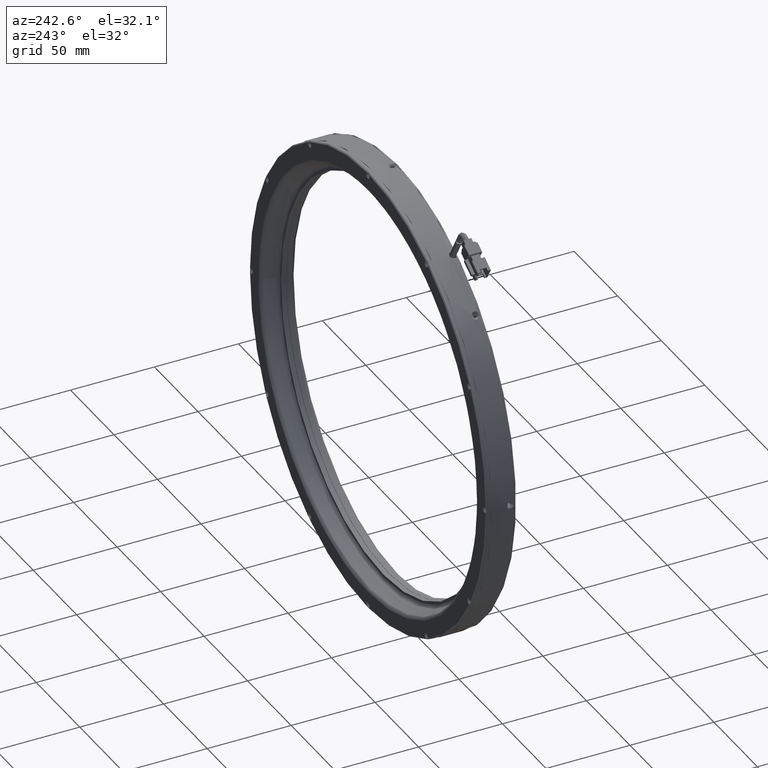
[diagram: clean part render]
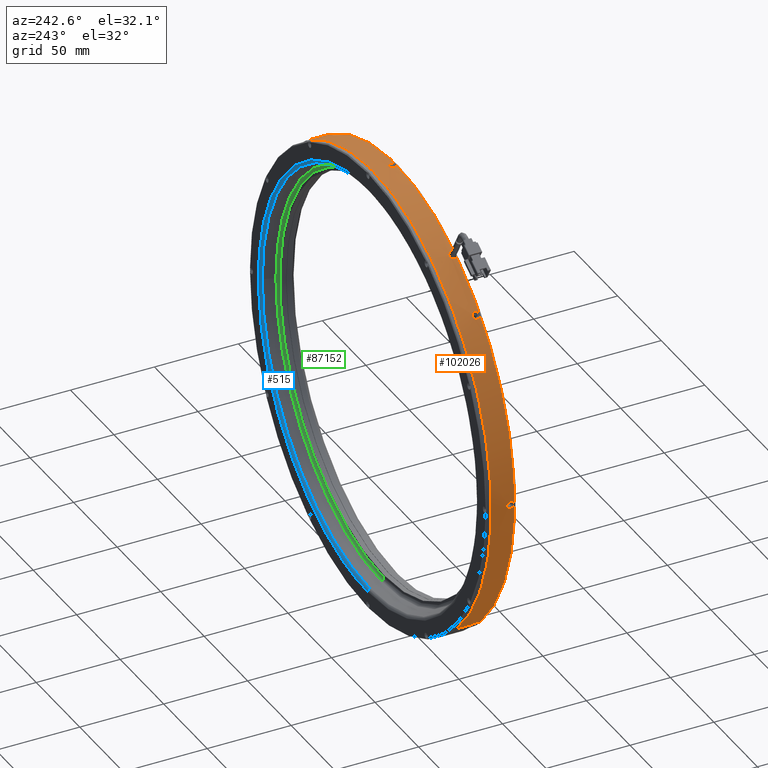
[diagram: same view with three faces highlighted in distinct colors, each labeled with its STEP entity id]
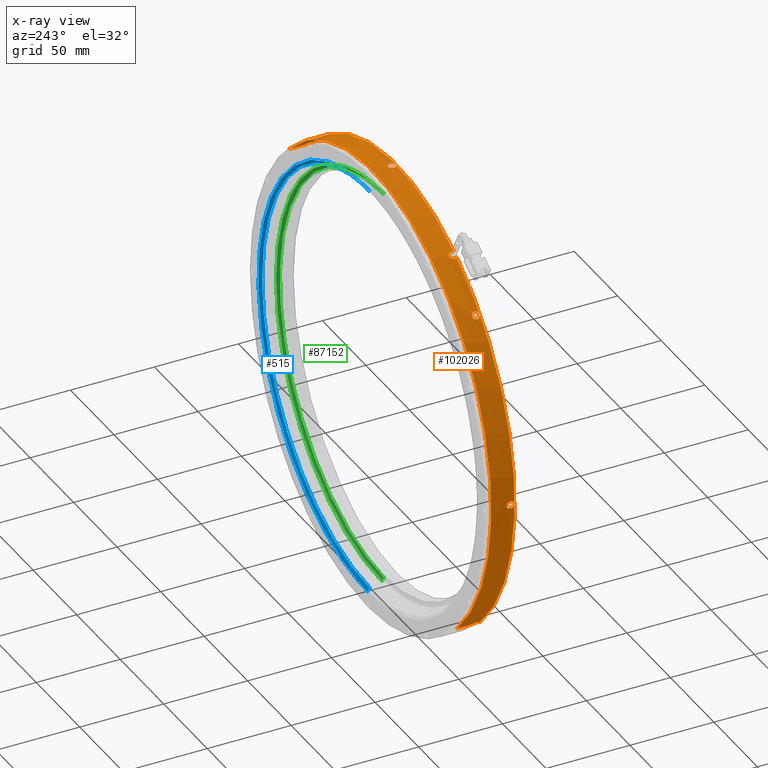
[diagram: x-ray of the same camera — body ghosted, the three highlighted faces saturated]
A machine part, auxiliary view with three faces highlighted in distinct colors.
The next image is the same camera in x-ray (body ghosted, the three faces saturated) — at least one of them is partly hidden behind the body in this view.
Their STEP definitions:

[orange] entity #102026 — the highlighted cylindrical surface (partial cylindrical patch) has radius 136 mm, axis along (0, -1, 0).
#29 = CARTESIAN_POINT ( 'NONE',  ( -159.3012343888706300, 2.219321357488063000, -0.7070515744756790100 ) ) ;
#479 = CARTESIAN_POINT ( 'NONE',  ( -159.2888560476553400, 1.105714012047208400, 1.962718005661469000 ) ) ;
#1343 = CIRCLE ( 'NONE', #26100, 136.0000000000000300 ) ;
#1381 = CARTESIAN_POINT ( 'NONE',  ( 71.83569894529418300, -1.521097283758639800, 97.18351899205760000 ) ) ;
#2911 = EDGE_CURVE ( 'NONE', #60179, #16372, #104952, .T. ) ;
#4031 = CARTESIAN_POINT ( 'NONE',  ( -121.0003986165799400, 0.1330234853204155500, 94.61088732276373000 ) ) ;
#4042 = CARTESIAN_POINT ( 'NONE',  ( -24.40483843466375900, 2.053681805915533100, 135.9957912599233800 ) ) ;
#4330 = CARTESIAN_POINT ( 'NONE',  ( -120.9228529506723100, 0.8415117797901262600, -94.69091265311847400 ) ) ;
#4473 = CARTESIAN_POINT ( 'NONE',  ( -21.40851104385181000, 1.234631180252435200, 135.9868269658736300 ) ) ;
#4652 = CARTESIAN_POINT ( 'NONE',  ( 72.86351355922867900, 2.333023485419867700, 96.16652224138214000 ) ) ;
#4801 = CARTESIAN_POINT ( 'NONE',  ( -89.48210122964326300, -29.84763788070300100, 118.8121530382764600 ) ) ;
#5078 = CARTESIAN_POINT ( 'NONE',  ( -118.6874436051668300, -1.787634835269112900, 96.94265750243114600 ) ) ;
#5234 = VECTOR ( 'NONE', #126945, 1000.000000000000000 ) ;
#5440 = VERTEX_POINT ( 'NONE', #126936 ) ;
#5538 = CARTESIAN_POINT ( 'NONE',  ( -120.7998283087476600, -0.9685842096084058600, 94.81759537262802000 ) ) ;
#6368 = CARTESIAN_POINT ( 'NONE',  ( 71.46556556981829500, 1.105444556398151200, 97.54445281358273700 ) ) ;
#6409 = EDGE_CURVE ( 'NONE', #47134, #60954, #91542, .T. ) ;
#6601 = VERTEX_POINT ( 'NONE', #128035 ) ;
#7515 = CARTESIAN_POINT ( 'NONE',  ( -91.77783104687512200, 1.363985468447263200, 117.5043063538066500 ) ) ;
#7658 = VECTOR ( 'NONE', #68661, 1000.000000000000000 ) ;
#7707 = CARTESIAN_POINT ( 'NONE',  ( -120.2462372664920000, -1.787141141719117000, -95.38385404657107400 ) ) ;
#7949 = CARTESIAN_POINT ( 'NONE',  ( -89.66813977681903200, 0.2599170472402992400, 118.7083491476853800 ) ) ;
#8653 = CARTESIAN_POINT ( 'NONE',  ( -21.13454697621411100, -0.1542971119846783800, 135.9827141196941800 ) ) ;
#8683 = ORIENTED_EDGE ( 'NONE', *, *, #46208, .T. ) ;
#8891 = B_SPLINE_CURVE_WITH_KNOTS ( 'NONE', 3,
 ( #35690, #129545, #98503, #36144, #108950, #46622, #119484, #57021, #130001, #67498, #5078, #77890, #15623, #88408, #26078, #98955, #36599, #109377, #47051, #119931, #57483, #130462, #67940, #5538, #78356, #16074, #88845, #26528 ),
 .UNSPECIFIED., .F., .F.,
 ( 4, 2, 2, 2, 2, 2, 2, 2, 2, 2, 2, 2, 2, 4 ),
 ( 0.006871121403889675200, 0.007300564399102735900, 0.007730007394315796700, 0.008159450389528857500, 0.008588893384741919100, 0.009447779375168063200, 0.009877222370381133500, 0.01030666536559420400, 0.01073610836080727600, 0.01116555135602034800, 0.01202443734644649000, 0.01245388034165955000, 0.01288332333687261200, 0.01374220932729874200 ),
 .UNSPECIFIED. ) ;
#8975 = VERTEX_POINT ( 'NONE', #134303 ) ;
#8994 = CARTESIAN_POINT ( 'NONE',  ( -120.8473373807958500, 1.105818278868204900, 94.76870202691523600 ) ) ;
#9102 = CARTESIAN_POINT ( 'NONE',  ( -23.44475116101972400, -2.067074188551597300, 136.0000015548658900 ) ) ;
#9437 = CARTESIAN_POINT ( 'NONE',  ( -118.9708160956843600, 2.220637338727529100, 96.66275568029787700 ) ) ;
#10028 = CARTESIAN_POINT ( 'NONE',  ( -159.3018952439058200, -1.996072460027903200, 0.5680175723025718800 ) ) ;
#10468 = CARTESIAN_POINT ( 'NONE',  ( -159.2864412636557700, -0.4426259340949083600, -2.125522543980220100 ) ) ;
#10570 = CARTESIAN_POINT ( 'NONE',  ( -159.3027793184269000, 2.318751137120334400, -0.2866651005242598600 ) ) ;
#11027 = CARTESIAN_POINT ( 'NONE',  ( -159.2854956090154400, 0.4224120804676271800, 2.182486926860118800 ) ) ;
#11715 = AXIS2_PLACEMENT_3D ( 'NONE', #26113, #46211, #78394 ) ;
#11964 = CARTESIAN_POINT ( 'NONE',  ( 71.50450148991167500, -0.9716160985869818400, 97.50665490793399200 ) ) ;
#12193 = CARTESIAN_POINT ( 'NONE',  ( -93.10780521788211700, -29.84763788070300100, 116.7188518646648300 ) ) ;
#13476 = EDGE_CURVE ( 'NONE', #55184, #47134, #17827, .T. ) ;
#14146 = CARTESIAN_POINT ( 'NONE',  ( -25.48549560901630800, 0.1330234853204155000, 135.9824869268615500 ) ) ;
#14567 = CARTESIAN_POINT ( 'NONE',  ( -23.87102625445879400, 2.262119430668731100, 135.9988865617520200 ) ) ;
#14874 = CARTESIAN_POINT ( 'NONE',  ( -120.9906510300766600, 0.4204147208049812700, -94.62095594067915300 ) ) ;
#15015 = CARTESIAN_POINT ( 'NONE',  ( -21.17748613817605400, 0.7086729047357242000, 135.9834325815019200 ) ) ;
#15326 = DIRECTION ( 'NONE',  ( 0.0000000000000000000, -1.000000000000000000, 0.0000000000000000000 ) ) ;
#15623 = CARTESIAN_POINT ( 'NONE',  ( -119.0670945265814600, -1.996072460021675500, 96.56738399884213200 ) ) ;
#15643 = VERTEX_POINT ( 'NONE', #43724 ) ;
#16074 = CARTESIAN_POINT ( 'NONE',  ( -120.9607873939663600, -0.4426259340932237600, 94.65183590299504600 ) ) ;
#16372 = VERTEX_POINT ( 'NONE', #4652 ) ;
#16796 = CARTESIAN_POINT ( 'NONE',  ( 72.86351355921679800, -29.84763788070300100, 96.16652224137030200 ) ) ;
#16882 = CARTESIAN_POINT ( 'NONE',  ( 71.62666527514478800, 1.471322956026267700, 97.38769563436775900 ) ) ;
#17827 = LINE ( 'NONE', #4801, #69960 ) ;
#17963 = CARTESIAN_POINT ( 'NONE',  ( -91.18612597737447300, 1.418815691177420100, 117.8469386919706400 ) ) ;
#18135 = CARTESIAN_POINT ( 'NONE',  ( -119.8713408548116800, -1.995727358250800200, -95.76313011467154000 ) ) ;
#18402 = CARTESIAN_POINT ( 'NONE',  ( -89.54128994917512300, -0.1232368690426058500, 118.7791682892152900 ) ) ;
#18575 = ORIENTED_EDGE ( 'NONE', *, *, #6409, .T. ) ;
#19085 = CARTESIAN_POINT ( 'NONE',  ( -21.23181798160968400, -0.5751545655520917700, 135.9842384771741300 ) ) ;
#19433 = CARTESIAN_POINT ( 'NONE',  ( -120.6904532294819600, 1.471804438698370200, 94.92993159874158900 ) ) ;
#19544 = CARTESIAN_POINT ( 'NONE',  ( -23.86993340388029900, -1.996324143225777000, 135.9988904718247200 ) ) ;
#19879 = CARTESIAN_POINT ( 'NONE',  ( -118.5151220602928700, 1.890851686959564000, 97.11176245095718700 ) ) ;
#20452 = CARTESIAN_POINT ( 'NONE',  ( -159.3030071110925700, -2.066877823447254700, 0.1447106854881672100 ) ) ;
#20535 = CARTESIAN_POINT ( 'NONE',  ( -159.2857228018479800, 0.4203440826255182600, -2.168461705942111200 ) ) ;
#20903 = CARTESIAN_POINT ( 'NONE',  ( -159.2854956090153800, 0.1330234853204154400, -2.182486926863024500 ) ) ;
#21013 = CARTESIAN_POINT ( 'NONE',  ( -159.3030102370196900, 2.333121159192467400, 0.1417424788635197900 ) ) ;
#21194 = FACE_BOUND ( 'NONE', #106036, .T. ) ;
#21299 = VECTOR ( 'NONE', #53206, 1000.000000000000000 ) ;
#21888 = VERTEX_POINT ( 'NONE', #96549 ) ;
#21926 = ORIENTED_EDGE ( 'NONE', *, *, #132643, .T. ) ;
#22395 = CARTESIAN_POINT ( 'NONE',  ( 71.35781907184252800, -0.4362623293917069500, 97.64900644426373300 ) ) ;
#22728 = ORIENTED_EDGE ( 'NONE', *, *, #132626, .T. ) ;
#24582 = CARTESIAN_POINT ( 'NONE',  ( -25.48549560901632900, 0.2777170778512292300, 135.9824869268615800 ) ) ;
#24888 = CARTESIAN_POINT ( 'NONE',  ( -119.6723957577631600, 2.318667958888537100, -95.96333119356494000 ) ) ;
#25032 = CARTESIAN_POINT ( 'NONE',  ( -23.44771936764437800, 2.332924794088076000, 135.9999984289387700 ) ) ;
#25324 = CARTESIAN_POINT ( 'NONE',  ( -121.0003986166551500, 0.1330234853204152700, -94.61088732268608200 ) ) ;
#25476 = CARTESIAN_POINT ( 'NONE',  ( -21.12052175529322500, 0.1330234853204152200, 135.9824869268615800 ) ) ;
#26078 = CARTESIAN_POINT ( 'NONE',  ( -119.3672039055975600, -2.066877823440802500, 96.26884703748109500 ) ) ;
#26100 = AXIS2_PLACEMENT_3D ( 'NONE', #93947, #31615, #104476 ) ;
#26113 = CARTESIAN_POINT ( 'NONE',  ( -23.30300868215381600, -29.84763788070300100, -2.420481350073888600E-014 ) ) ;
#26528 = CARTESIAN_POINT ( 'NONE',  ( -121.0003986165799400, 0.1330234853204155500, 94.61088732276373000 ) ) ;
#27389 = CARTESIAN_POINT ( 'NONE',  ( 71.90712621331046300, 1.888282622157920500, 97.11369826354791700 ) ) ;
#27654 = VERTEX_POINT ( 'NONE', #73699 ) ;
#27751 = B_SPLINE_CURVE_WITH_KNOTS ( 'NONE', 3,
 ( #99988, #131931, #28040, #100868, #38514, #111286, #48975, #121852, #59452, #132372, #69872, #7515, #80287, #17963, #90816, #28468, #101295, #38978, #111739, #49413, #122308, #59882, #132818, #70317, #7949, #80736, #18402, #91266, #28894, #101738 ),
 .UNSPECIFIED., .F., .F.,
 ( 4, 2, 2, 2, 2, 2, 2, 2, 2, 2, 2, 2, 2, 2, 4 ),
 ( 3.144186300207962900E-018, 0.0004082390967633136900, 0.0008164781935266242400, 0.001224717290289934600, 0.001632956387053245400, 0.002449434580579881800, 0.003265912774106518600, 0.003674151870869855000, 0.004082390967633192300, 0.004490630064396528700, 0.004898869161159865100, 0.005307108257923202400, 0.005715347354686538800, 0.006123586451449876100, 0.006531825548213211600 ),
 .UNSPECIFIED. ) ;
#28040 = CARTESIAN_POINT ( 'NONE',  ( -93.09611753606797900, -0.3932184659480840200, 116.7258440458054500 ) ) ;
#28232 = CARTESIAN_POINT ( 'NONE',  ( -121.0003986166563500, -0.01161011630343935700, -94.61088732268881100 ) ) ;
#28468 = CARTESIAN_POINT ( 'NONE',  ( -90.83369261503673900, 1.352369534076088200, 118.0492468283402700 ) ) ;
#28659 = CARTESIAN_POINT ( 'NONE',  ( -119.5718251605643900, -2.066976514778120900, -96.06422800435405000 ) ) ;
#28894 = CARTESIAN_POINT ( 'NONE',  ( -89.48210432692978600, -0.5289361051625620600, 118.8121513130689200 ) ) ;
#28998 = VERTEX_POINT ( 'NONE', #31805 ) ;
#29589 = CARTESIAN_POINT ( 'NONE',  ( -21.40694722690758700, -0.9659367075814573300, 135.9868053149223200 ) ) ;
#29612 = EDGE_LOOP ( 'NONE', ( #22728, #76850 ) ) ;
#29941 = CARTESIAN_POINT ( 'NONE',  ( -120.4162545978596100, 1.888805224466188800, 95.21059659556118500 ) ) ;
#30036 = VERTEX_POINT ( 'NONE', #50195 ) ;
#30050 = CARTESIAN_POINT ( 'NONE',  ( -24.40578407791351600, -1.787553701122371200, 135.9957893852299500 ) ) ;
#30135 = EDGE_CURVE ( 'NONE', #30036, #75444, #93154, .T. ) ;
#30404 = CARTESIAN_POINT ( 'NONE',  ( -118.2337045410930500, 1.473137438867079700, 97.38669936539368200 ) ) ;
#30510 = CARTESIAN_POINT ( 'NONE',  ( -159.2865938602490400, -0.4355316634008276100, 2.113132187135557500 ) ) ;
#30559 = EDGE_CURVE ( 'NONE', #6601, #117472, #8891, .T. ) ;
#30739 = B_SPLINE_CURVE_WITH_KNOTS ( 'NONE', 3,
 ( #72438, #134991, #20535, #93389, #31047, #103884, #41577, #114352, #51994, #124910, #62441, #29, #72867, #10570, #83324, #21013, #93832, #31485, #104360, #42030, #114842, #52436, #125368, #62890, #479, #73331, #11027, #83767 ),
 .UNSPECIFIED., .F., .F.,
 ( 4, 2, 2, 2, 2, 2, 2, 2, 2, 2, 2, 2, 2, 4 ),
 ( 5.838166954281239800E-018, 0.0004294450877443612300, 0.0008588901754887166100, 0.001288335263233071900, 0.001717780350977427400, 0.002576670526466136400, 0.003006115614210490800, 0.003435560701954845200, 0.003865005789699199600, 0.004294450877443554400, 0.005153341052932262400, 0.005582786140676616400, 0.006012231228420971200, 0.006871121403909681700 ),
 .UNSPECIFIED. ) ;
#30960 = CARTESIAN_POINT ( 'NONE',  ( -159.3027783170267600, -2.052638801892456400, -0.2868317781950359700 ) ) ;
#31047 = CARTESIAN_POINT ( 'NONE',  ( -159.2872471593278800, 0.8412015361929307000, -2.071190700546538200 ) ) ;
#31060 = CARTESIAN_POINT ( 'NONE',  ( -119.4695309235244600, -2.366976514679583600, -96.16652224137034500 ) ) ;
#31485 = CARTESIAN_POINT ( 'NONE',  ( -159.3018991539785800, 2.262371113866636000, 0.5669247217240914700 ) ) ;
#31615 = DIRECTION ( 'NONE',  ( -0.0000000000000000000, 1.000000000000000000, -0.0000000000000000000 ) ) ;
#31805 = CARTESIAN_POINT ( 'NONE',  ( -159.2854956090154100, 0.1330234853204151600, 2.182486926860105000 ) ) ;
#32878 = CARTESIAN_POINT ( 'NONE',  ( 71.30787864053120000, -0.01160006827046596400, 97.69738993450229700 ) ) ;
#34156 = CARTESIAN_POINT ( 'NONE',  ( 71.30787864053120000, 0.1330234853204155500, 97.69738993450232600 ) ) ;
#34917 = B_SPLINE_CURVE_WITH_KNOTS ( 'NONE', 3,
 ( #112769, #40030, #60908, #133858, #71341, #8994, #81743, #19433, #92305, #29941, #102804, #40487, #113233, #50888, #123801, #61343, #134310, #71778, #9437, #82205, #19879, #92754, #30404, #103254, #40931, #113681, #51340, #124251 ),
 .UNSPECIFIED., .F., .F.,
 ( 4, 2, 2, 2, 2, 2, 2, 2, 2, 2, 2, 2, 2, 4 ),
 ( 1.084202172485504400E-018, 0.0004294450877431260600, 0.0008588901754862510300, 0.001288335263229376100, 0.001717780350972501000, 0.002576670526458752100, 0.003006115614201850100, 0.003435560701944948200, 0.003865005789688046200, 0.004294450877431144200, 0.005153341052917313400, 0.005582786140660398400, 0.006012231228403483500, 0.006871121403889675200 ),
 .UNSPECIFIED. ) ;
#35078 = CARTESIAN_POINT ( 'NONE',  ( -25.41614086929173400, 0.7015786340416604300, 135.9835851780952100 ) ) ;
#35389 = CARTESIAN_POINT ( 'NONE',  ( -119.9683183523100500, 2.219301314170897900, -95.66522507973195400 ) ) ;
#35518 = CARTESIAN_POINT ( 'NONE',  ( -23.01617690396118800, 2.318685772533270100, 135.9997696348729600 ) ) ;
#35690 = CARTESIAN_POINT ( 'NONE',  ( -117.9138960049193400, 0.1330234853204152700, 97.69738993442439300 ) ) ;
#36144 = CARTESIAN_POINT ( 'NONE',  ( -117.9637137925806200, -0.4355316633991739800, 97.64912530855259800 ) ) ;
#36599 = CARTESIAN_POINT ( 'NONE',  ( -119.6721887262015400, -2.052638801886044600, 95.96353865320620000 ) ) ;
#37411 = CARTESIAN_POINT ( 'NONE',  ( 71.30787864053121400, 0.2776570869439180000, 97.69738993450232600 ) ) ;
#37825 = VECTOR ( 'NONE', #123969, 1000.000000000000000 ) ;
#37856 = CARTESIAN_POINT ( 'NONE',  ( 72.36154047053690900, 2.218949771098544400, 96.66597814482413800 ) ) ;
#38514 = CARTESIAN_POINT ( 'NONE',  ( -93.01564176930726500, 0.006440380977282521300, 116.7739335749839400 ) ) ;
#38710 = CARTESIAN_POINT ( 'NONE',  ( -120.9521738670203900, -0.4353001410291333400, -94.66066396852086500 ) ) ;
#38978 = CARTESIAN_POINT ( 'NONE',  ( -90.50053387792131300, 1.209100647409597600, 118.2392009253320600 ) ) ;
#40030 = CARTESIAN_POINT ( 'NONE',  ( -121.0003986165799100, 0.2777170778508072900, 94.61088732276371600 ) ) ;
#40141 = CARTESIAN_POINT ( 'NONE',  ( -21.65676681501090400, -1.318408872185982100, 135.9900729715468200 ) ) ;
#40487 = CARTESIAN_POINT ( 'NONE',  ( -119.9682372716706300, 2.219321357481942600, 95.66530666359929600 ) ) ;
#40590 = CARTESIAN_POINT ( 'NONE',  ( -24.94974932781114100, -1.317953978923935200, 135.9900675796274100 ) ) ;
#40655 = CARTESIAN_POINT ( 'NONE',  ( -23.30300868215381600, -2.366976514679583600, -2.420481350073888600E-014 ) ) ;
#40931 = CARTESIAN_POINT ( 'NONE',  ( -118.0716722883425300, 1.105714012044365400, 97.54436602890119400 ) ) ;
#41038 = CARTESIAN_POINT ( 'NONE',  ( -159.2888568187322600, -0.8397713082302252800, 1.962664441623317700 ) ) ;
#41265 = B_SPLINE_CURVE_WITH_KNOTS ( 'NONE', 3,
 ( #110226, #37411, #58311, #131279, #68732, #6368, #79206, #16882, #89696, #27389, #100226, #37856, #110639, #48306, #121181, #58777 ),
 .UNSPECIFIED., .F., .F.,
 ( 4, 2, 2, 2, 2, 2, 2, 4 ),
 ( 0.01029678256474865700, 0.01072583379677307300, 0.01115488502879749000, 0.01158393626082190900, 0.01201298749284632600, 0.01287108995689513800, 0.01330014118891957200, 0.01372919242094400700 ),
 .UNSPECIFIED. ) ;
#41485 = CARTESIAN_POINT ( 'NONE',  ( -159.3012540752269800, -1.954590368092816900, -0.7035346663657259200 ) ) ;
#41577 = CARTESIAN_POINT ( 'NONE',  ( -159.2898139970761500, 1.231983678222310100, -1.896061455248663200 ) ) ;
#42030 = CARTESIAN_POINT ( 'NONE',  ( -159.2987980673838400, 2.053600671763251100, 1.102775395757320500 ) ) ;
#42663 = EDGE_LOOP ( 'NONE', ( #111601, #112374 ) ) ;
#42796 = VERTEX_POINT ( 'NONE', #55384 ) ;
#42957 = CARTESIAN_POINT ( 'NONE',  ( 72.46120982510153400, -1.996100759194982600, 96.56725196871396100 ) ) ;
#43724 = CARTESIAN_POINT ( 'NONE',  ( -93.10780521788211700, -2.366976514679583600, 116.7188518646648300 ) ) ;
#44508 = CARTESIAN_POINT ( 'NONE',  ( -23.30300868215381600, 11.56998264099750500, -2.420481350073888600E-014 ) ) ;
#44738 = ORIENTED_EDGE ( 'NONE', *, *, #71190, .T. ) ;
#45599 = CARTESIAN_POINT ( 'NONE',  ( -25.26567312377950000, 1.105818278871041800, 135.9858481365783100 ) ) ;
#45881 = CARTESIAN_POINT ( 'NONE',  ( -120.2416763863684300, 2.040766875177075800, -95.38820096314128700 ) ) ;
#46023 = CARTESIAN_POINT ( 'NONE',  ( -22.59947401579048400, 2.220637338733650400, 135.9982453930731200 ) ) ;
#46208 = EDGE_CURVE ( 'NONE', #21888, #55184, #27751, .T. ) ;
#46211 = DIRECTION ( 'NONE',  ( 0.0000000000000000000, -1.000000000000000000, 0.0000000000000000000 ) ) ;
#46622 = CARTESIAN_POINT ( 'NONE',  ( -118.0717107090708100, -0.8397713082273793300, 97.54432869864038500 ) ) ;
#47051 = CARTESIAN_POINT ( 'NONE',  ( -119.9657643624534700, -1.954590368086704300, 95.66780741352876300 ) ) ;
#47134 = VERTEX_POINT ( 'NONE', #86391 ) ;
#48306 = CARTESIAN_POINT ( 'NONE',  ( 72.66008712462641500, 2.318665165911937700, 96.36962234618853500 ) ) ;
#48917 = FACE_OUTER_BOUND ( 'NONE', #75101, .T. ) ;
#48975 = CARTESIAN_POINT ( 'NONE',  ( -92.86979581466826500, 0.3790800838724685500, 116.8608913306689800 ) ) ;
#49161 = CARTESIAN_POINT ( 'NONE',  ( -120.8474614957355700, -0.8393975857571641700, -94.76857425197322000 ) ) ;
#49413 = CARTESIAN_POINT ( 'NONE',  ( -90.19659123652273500, 0.9934096878145470800, 118.4114077106920700 ) ) ;
#50195 = CARTESIAN_POINT ( 'NONE',  ( -119.4695309235244600, -2.066976514785033200, -96.16652224137034500 ) ) ;
#50567 = CARTESIAN_POINT ( 'NONE',  ( -22.20117892964577100, -1.787634835274707300, 135.9957912599234400 ) ) ;
#50573 = ORIENTED_EDGE ( 'NONE', *, *, #56067, .T. ) ;
#50888 = CARTESIAN_POINT ( 'NONE',  ( -119.6720715753870900, 2.318751137113928000, 95.96365722021430100 ) ) ;
#50984 = EDGE_CURVE ( 'NONE', #27654, #28998, #30739, .T. ) ;
#51000 = CARTESIAN_POINT ( 'NONE',  ( -25.19750632045771600, -0.9685842096115997400, 135.9868269658735800 ) ) ;
#51048 = DIRECTION ( 'NONE',  ( 0.7071067811865480200, 0.0000000000000000000, 0.7071067811865470200 ) ) ;
#51064 = CARTESIAN_POINT ( 'NONE',  ( -119.4695309235244600, -29.84763788070300100, -96.16652224137034500 ) ) ;
#51340 = CARTESIAN_POINT ( 'NONE',  ( -117.9138960049192800, 0.4224120804667887400, 97.69738993442439300 ) ) ;
#51447 = CARTESIAN_POINT ( 'NONE',  ( -159.2919294950436300, -1.205757468061459300, 1.737724070801705200 ) ) ;
#51895 = CARTESIAN_POINT ( 'NONE',  ( -159.2965254649872400, -1.624804716323863900, -1.343254741271062500 ) ) ;
#51994 = CARTESIAN_POINT ( 'NONE',  ( -159.2930816537006000, 1.584455842826844300, -1.646241867145333400 ) ) ;
#52272 = LINE ( 'NONE', #115657, #21299 ) ;
#52436 = CARTESIAN_POINT ( 'NONE',  ( -159.2930762617811800, 1.584000949564787500, 1.646740645654951400 ) ) ;
#53084 = EDGE_CURVE ( 'NONE', #110572, #60954, #63036, .T. ) ;
#53152 = EDGE_CURVE ( 'NONE', #117472, #6601, #34917, .T. ) ;
#53206 = DIRECTION ( 'NONE',  ( 0.0000000000000000000, -1.000000000000000000, 0.0000000000000000000 ) ) ;
#53323 = CARTESIAN_POINT ( 'NONE',  ( 72.17461224477527500, -1.842561621998351400, 96.85061324181997100 ) ) ;
#54889 = DIRECTION ( 'NONE',  ( 0.7071067811865485700, 0.0000000000000000000, 0.7071067811865463500 ) ) ;
#55184 = VERTEX_POINT ( 'NONE', #84672 ) ;
#55267 = B_SPLINE_CURVE_WITH_KNOTS ( 'NONE', 3,
 ( #85818, #76695, #24888, #97754, #35389, #108192, #45881, #118720, #56272, #129224, #66731, #4330, #77140, #14874, #87633, #25324 ),
 .UNSPECIFIED., .F., .F.,
 ( 4, 2, 2, 2, 2, 2, 2, 4 ),
 ( 0.006864611166063686700, 0.007293632590898900500, 0.007722654015734115200, 0.008151675440569329900, 0.008580696865404543700, 0.009438739715074990300, 0.009867761139910209400, 0.01029678256474542800 ),
 .UNSPECIFIED. ) ;
#55384 = CARTESIAN_POINT ( 'NONE',  ( -121.0003986166551500, 0.1330234853204152700, -94.61088732268608200 ) ) ;
#55618 = CIRCLE ( 'NONE', #80815, 136.0000000000000300 ) ;
#55964 = CARTESIAN_POINT ( 'NONE',  ( -25.04073275295788300, 1.471804438702277700, 135.9889208128897700 ) ) ;
#56067 = EDGE_CURVE ( 'NONE', #15643, #21888, #60694, .T. ) ;
#56272 = CARTESIAN_POINT ( 'NONE',  ( -120.4865276742109900, 1.787144254398366400, -95.13870762744851100 ) ) ;
#56420 = CARTESIAN_POINT ( 'NONE',  ( -21.95975394088516800, 1.890851686964687000, 135.9935167828334700 ) ) ;
#57021 = CARTESIAN_POINT ( 'NONE',  ( -118.2329402808971800, -1.205757468057544000, 97.38744454732643900 ) ) ;
#57483 = CARTESIAN_POINT ( 'NONE',  ( -120.4147711331127700, -1.624804716318734000, 95.21211337813724600 ) ) ;
#58311 = CARTESIAN_POINT ( 'NONE',  ( 71.31794834181261000, 0.4202257978685585100, 97.68764126608473900 ) ) ;
#58777 = CARTESIAN_POINT ( 'NONE',  ( 72.86351355922867900, 2.333023485419867700, 96.16652224138214000 ) ) ;
#59220 = EDGE_CURVE ( 'NONE', #120119, #16372, #41265, .T. ) ;
#59452 = CARTESIAN_POINT ( 'NONE',  ( -92.66280179842772200, 0.7131536411727509300, 116.9838811002227500 ) ) ;
#59478 = EDGE_CURVE ( 'NONE', #8975, #130052, #52272, .T. ) ;
#59635 = CARTESIAN_POINT ( 'NONE',  ( -120.6907043165206900, -1.205275985385054100, -94.92967395729959900 ) ) ;
#59882 = CARTESIAN_POINT ( 'NONE',  ( -89.93394352413102400, 0.7130771374036409800, 118.5593863630711100 ) ) ;
#60179 = VERTEX_POINT ( 'NONE', #127794 ) ;
#60576 = CARTESIAN_POINT ( 'NONE',  ( -21.12052175529321800, -0.01167010721036671800, 135.9824869268616400 ) ) ;
#60694 = LINE ( 'NONE', #12193, #5234 ) ;
#60908 = CARTESIAN_POINT ( 'NONE',  ( -120.9906419373517000, 0.4203440826246718200, 94.62096530117706500 ) ) ;
#60954 = VERTEX_POINT ( 'NONE', #86307 ) ;
#61002 = CARTESIAN_POINT ( 'NONE',  ( -22.73499110985074600, -1.996072460027885000, 135.9988865617520200 ) ) ;
#61343 = CARTESIAN_POINT ( 'NONE',  ( -119.3693049549940500, 2.333121159185984600, 96.26675040881315200 ) ) ;
#61445 = CARTESIAN_POINT ( 'NONE',  ( -25.42853122613350400, -0.4426259340949011400, 135.9834325815018900 ) ) ;
#61897 = CARTESIAN_POINT ( 'NONE',  ( -159.2965019057242800, -1.622758253830490100, 1.345376236495463800 ) ) ;
#62351 = CARTESIAN_POINT ( 'NONE',  ( -159.2919429854128700, -1.207090468230169500, -1.736656734039658400 ) ) ;
#62441 = CARTESIAN_POINT ( 'NONE',  ( -159.2987999420772100, 2.053681805915562400, -1.101829752510457200 ) ) ;
#62890 = CARTESIAN_POINT ( 'NONE',  ( -159.2898356480274600, 1.234631180252445400, 1.894497638301530200 ) ) ;
#63036 = LINE ( 'NONE', #16796, #7658 ) ;
#63776 = CARTESIAN_POINT ( 'NONE',  ( 71.91529419645444000, -1.613760672031683300, 97.10555584605022300 ) ) ;
#64944 = ORIENTED_EDGE ( 'NONE', *, *, #53084, .F. ) ;
#66432 = CARTESIAN_POINT ( 'NONE',  ( -24.64838491865166900, 1.888805224471315200, 135.9934932235704000 ) ) ;
#66731 = CARTESIAN_POINT ( 'NONE',  ( -120.8096635900871000, 1.237663069226970300, -94.80751017206634400 ) ) ;
#66873 = CARTESIAN_POINT ( 'NONE',  ( -21.56635194811657600, 1.473137438870989700, 135.9889343032590100 ) ) ;
#67498 = CARTESIAN_POINT ( 'NONE',  ( -118.5136052777167200, -1.622758253825361100, 97.11324591570404200 ) ) ;
#67940 = CARTESIAN_POINT ( 'NONE',  ( -120.6897080475492300, -1.207090468226263100, 94.93069585893738300 ) ) ;
#68661 = DIRECTION ( 'NONE',  ( 0.0000000000000000000, -1.000000000000000000, 0.0000000000000000000 ) ) ;
#68732 = CARTESIAN_POINT ( 'NONE',  ( 71.38774956962883800, 0.8409169621210754700, 97.61999406963343500 ) ) ;
#69872 = CARTESIAN_POINT ( 'NONE',  ( -92.21215080154121300, 1.156506975813422500, 117.2501319484948400 ) ) ;
#69960 = VECTOR ( 'NONE', #15326, 1000.000000000000000 ) ;
#70069 = CARTESIAN_POINT ( 'NONE',  ( -120.4167069457009700, -1.622235651516406500, -95.21013489546513100 ) ) ;
#70317 = CARTESIAN_POINT ( 'NONE',  ( -89.72551546705805900, 0.3817784676109329300, 118.6762670761039300 ) ) ;
#71017 = CARTESIAN_POINT ( 'NONE',  ( -159.2854956090154700, -0.01167010721040268200, 2.182486926860117000 ) ) ;
#71190 = EDGE_CURVE ( 'NONE', #60179, #8975, #55618, .T. ) ;
#71339 = B_SPLINE_CURVE_WITH_KNOTS ( 'NONE', 3,
 ( #14146, #24582, #97441, #35078, #107901, #45599, #118430, #55964, #128910, #66432, #4042, #76842, #14567, #87330, #25032, #97900, #35518, #108342, #46023, #118857, #56420, #129372, #66873, #4473, #77274, #15015, #87785, #25476 ),
 .UNSPECIFIED., .F., .F.,
 ( 4, 2, 2, 2, 2, 2, 2, 2, 2, 2, 2, 2, 2, 4 ),
 ( 1.707618421664669500E-018, 0.0004294450877443604800, 0.0008588901754887192200, 0.001288335263233077500, 0.001717780350977435800, 0.002576670526466151600, 0.003006115614210504200, 0.003435560701954856900, 0.003865005789699210000, 0.004294450877443562300, 0.005153341052932276300, 0.005582786140676638000, 0.006012231228420998100, 0.006871121403909719900 ),
 .UNSPECIFIED. ) ;
#71341 = CARTESIAN_POINT ( 'NONE',  ( -120.9229388333348300, 0.8412015361908464800, 94.69082417221591200 ) ) ;
#71459 = CARTESIAN_POINT ( 'NONE',  ( -23.15829799666514400, -2.066877823447234700, 135.9999984289387700 ) ) ;
#71778 = CARTESIAN_POINT ( 'NONE',  ( -119.0678700534752700, 2.262371113860363300, 96.56661400162622000 ) ) ;
#71879 = CARTESIAN_POINT ( 'NONE',  ( -25.48549560901630800, 0.1330234853204155000, 135.9824869268615500 ) ) ;
#72252 = ORIENTED_EDGE ( 'NONE', *, *, #59478, .T. ) ;
#72339 = CARTESIAN_POINT ( 'NONE',  ( -159.3012343888706000, -1.953274386847221800, 0.7070515744727788900 ) ) ;
#72438 = CARTESIAN_POINT ( 'NONE',  ( -159.2854956090153800, 0.1330234853204154400, -2.182486926863024500 ) ) ;
#72786 = CARTESIAN_POINT ( 'NONE',  ( -159.2888560476552600, -0.8396670414063771600, -1.962718005664379600 ) ) ;
#72867 = CARTESIAN_POINT ( 'NONE',  ( -159.3018952439058800, 2.262119430668761800, -0.5680175723054772300 ) ) ;
#73331 = CARTESIAN_POINT ( 'NONE',  ( -159.2864412636557500, 0.7086729047357363000, 2.125522543977306900 ) ) ;
#73699 = CARTESIAN_POINT ( 'NONE',  ( -159.2854956090153800, 0.1330234853204154400, -2.182486926863024500 ) ) ;
#73773 = CARTESIAN_POINT ( 'NONE',  ( 72.76122687450460100, -2.066976514786159800, 96.26880892608251400 ) ) ;
#74224 = CARTESIAN_POINT ( 'NONE',  ( 71.62060438310811600, -1.216764278633733600, 97.39377748829271300 ) ) ;
#75101 = EDGE_LOOP ( 'NONE', ( #44738, #72252, #102610, #100491, #114087, #117077, #50573, #8683, #109144, #18575, #64944, #133836, #109398, #86767 ) ) ;
#75444 = VERTEX_POINT ( 'NONE', #31060 ) ;
#76695 = CARTESIAN_POINT ( 'NONE',  ( -119.5718176082366300, 2.333023485425979700, -96.06423555665820400 ) ) ;
#76842 = CARTESIAN_POINT ( 'NONE',  ( -24.01006025662898600, 2.219321357488032400, 135.9982257067167100 ) ) ;
#76850 = ORIENTED_EDGE ( 'NONE', *, *, #95127, .T. ) ;
#77137 = VECTOR ( 'NONE', #92141, 1000.000000000000000 ) ;
#77140 = CARTESIAN_POINT ( 'NONE',  ( -120.9520151264167000, 0.7023093000320191900, -94.66082775399733900 ) ) ;
#77274 = CARTESIAN_POINT ( 'NONE',  ( -21.34029067649189300, 1.105714012047193800, 135.9858473655014800 ) ) ;
#77890 = CARTESIAN_POINT ( 'NONE',  ( -118.9683153457549000, -1.953274386841126900, 96.66522858951513800 ) ) ;
#78356 = CARTESIAN_POINT ( 'NONE',  ( -120.8473747110567700, -0.8396670414035324300, 94.76866360618689100 ) ) ;
#78394 = DIRECTION ( 'NONE',  ( 0.7071067811865485700, 0.0000000000000000000, 0.7071067811865463500 ) ) ;
#79206 = CARTESIAN_POINT ( 'NONE',  ( 71.51329995925941300, 1.231570221032728800, 97.49807113080511600 ) ) ;
#79367 = EDGE_CURVE ( 'NONE', #130052, #42796, #55267, .T. ) ;
#80044 = CARTESIAN_POINT ( 'NONE',  ( -121.0003986166551500, 0.1330234853204152700, -94.61088732268608200 ) ) ;
#80287 = CARTESIAN_POINT ( 'NONE',  ( -91.54019504300070800, 1.418560100184624200, 117.6425122508802600 ) ) ;
#80470 = CARTESIAN_POINT ( 'NONE',  ( -119.9689868269774100, -1.952902800456813600, -95.66454915269136400 ) ) ;
#80736 = CARTESIAN_POINT ( 'NONE',  ( -89.57603326191093600, 0.006919970048425387100, 118.7597953670845100 ) ) ;
#80815 = AXIS2_PLACEMENT_3D ( 'NONE', #44508, #117312, #54889 ) ;
#80991 = CARTESIAN_POINT ( 'NONE',  ( -21.12052175529322500, 0.1330234853204152200, 135.9824869268615800 ) ) ;
#81429 = CARTESIAN_POINT ( 'NONE',  ( -21.18987649501777400, -0.4355316634008254400, 135.9835851780952400 ) ) ;
#81743 = CARTESIAN_POINT ( 'NONE',  ( -120.8009187847789900, 1.231983678219085200, 94.81647427752776000 ) ) ;
#81847 = CARTESIAN_POINT ( 'NONE',  ( -23.58984046034833400, -2.052638801892436000, 135.9997696348729300 ) ) ;
#82205 = CARTESIAN_POINT ( 'NONE',  ( -118.6867736088039300, 2.053600671757594800, 96.94332484757723000 ) ) ;
#82751 = CARTESIAN_POINT ( 'NONE',  ( 72.86351355921679800, -2.066976514785981300, 96.16652224137030200 ) ) ;
#82779 = CARTESIAN_POINT ( 'NONE',  ( -159.3027793184268700, -2.052704166479474100, 0.2866651005213564600 ) ) ;
#83232 = CARTESIAN_POINT ( 'NONE',  ( -159.2854956090153300, -0.1563622896624938500, -2.182486926862981000 ) ) ;
#83324 = CARTESIAN_POINT ( 'NONE',  ( -159.3030071110926300, 2.332924794088106200, -0.1447106854910695800 ) ) ;
#83767 = CARTESIAN_POINT ( 'NONE',  ( -159.2854956090154100, 0.1330234853204151600, 2.182486926860105000 ) ) ;
#84634 = CARTESIAN_POINT ( 'NONE',  ( 71.38790397096370600, -0.5754648091498955100, 97.61984426851938700 ) ) ;
#84672 = CARTESIAN_POINT ( 'NONE',  ( -89.48210122964326300, -0.6669765146795694200, 118.8121530382764600 ) ) ;
#85818 = CARTESIAN_POINT ( 'NONE',  ( -119.4695309235244600, 2.333023485425862500, -96.16652224137034500 ) ) ;
#86307 = CARTESIAN_POINT ( 'NONE',  ( 72.86351355921679800, -2.366976514679583600, 96.16652224137030200 ) ) ;
#86391 = CARTESIAN_POINT ( 'NONE',  ( -89.48210122964324900, -2.366976514679583600, 118.8121530382764600 ) ) ;
#86767 = ORIENTED_EDGE ( 'NONE', *, *, #2911, .F. ) ;
#87330 = CARTESIAN_POINT ( 'NONE',  ( -23.58967378267756800, 2.318751137120302000, 135.9997706362730100 ) ) ;
#87633 = CARTESIAN_POINT ( 'NONE',  ( -121.0003986166563400, 0.2776457785761395300, -94.61088732268878200 ) ) ;
#87785 = CARTESIAN_POINT ( 'NONE',  ( -21.12052175529321800, 0.4224120804676599300, 135.9824869268615800 ) ) ;
#88408 = CARTESIAN_POINT ( 'NONE',  ( -119.2666659023698800, -2.052704166473080500, 96.36906289323152900 ) ) ;
#88845 = CARTESIAN_POINT ( 'NONE',  ( -121.0003986165799100, -0.1563622896616540800, 94.61088732276373000 ) ) ;
#89696 = CARTESIAN_POINT ( 'NONE',  ( 71.69212099016485200, 1.583959908746958900, 97.32386851563367700 ) ) ;
#90816 = CARTESIAN_POINT ( 'NONE',  ( -91.06614360473757600, 1.405343992093929700, 117.9159679375318300 ) ) ;
#91011 = CARTESIAN_POINT ( 'NONE',  ( -119.6726310283420500, -2.052618195270161600, -95.96309580678064300 ) ) ;
#91266 = CARTESIAN_POINT ( 'NONE',  ( -89.49426218160334700, -0.3908044267226659700, 118.8053815483892900 ) ) ;
#91542 = CIRCLE ( 'NONE', #124702, 136.0000000000000300 ) ;
#91985 = CARTESIAN_POINT ( 'NONE',  ( -21.34034424053000500, -0.8397713082302186200, 135.9858481365783700 ) ) ;
#92141 = DIRECTION ( 'NONE',  ( 0.0000000000000000000, -1.000000000000000000, 0.0000000000000000000 ) ) ;
#92305 = CARTESIAN_POINT ( 'NONE',  ( -120.6265802421161500, 1.584455842822584300, 94.99543398450606400 ) ) ;
#92410 = CARTESIAN_POINT ( 'NONE',  ( -24.00654334851903800, -1.954590368092795800, 135.9982453930731800 ) ) ;
#92754 = CARTESIAN_POINT ( 'NONE',  ( -118.2980861643304300, 1.584000949560546300, 97.32392043696639000 ) ) ;
#92862 = CARTESIAN_POINT ( 'NONE',  ( -159.2857228018479800, -0.1542971119846800200, 2.168461705939216600 ) ) ;
#93154 = LINE ( 'NONE', #51064, #37825 ) ;
#93292 = CARTESIAN_POINT ( 'NONE',  ( -159.3030102370197800, -2.067074188551618600, -0.1417424788664208000 ) ) ;
#93389 = CARTESIAN_POINT ( 'NONE',  ( -159.2865938602490100, 0.7015786340416679800, -2.113132187138453400 ) ) ;
#93758 = CARTESIAN_POINT ( 'NONE',  ( 72.86351355921679800, -29.84763788070300100, 96.16652224137030200 ) ) ;
#93832 = CARTESIAN_POINT ( 'NONE',  ( -159.3027783170267900, 2.318685772533296300, 0.2868317781921350100 ) ) ;
#93947 = CARTESIAN_POINT ( 'NONE',  ( -23.30300868215381600, -2.366976514679583600, -2.420481350073888600E-014 ) ) ;
#95127 = EDGE_CURVE ( 'NONE', #125309, #5440, #71339, .T. ) ;
#95233 = CARTESIAN_POINT ( 'NONE',  ( 71.31794725852428500, -0.1543677501644578300, 97.68764234792382700 ) ) ;
#96549 = CARTESIAN_POINT ( 'NONE',  ( -93.10780521788211700, -0.6669765146795694200, 116.7188518646648100 ) ) ;
#97441 = CARTESIAN_POINT ( 'NONE',  ( -25.47147038809539100, 0.4203440826255093700, 135.9827141196941500 ) ) ;
#97754 = CARTESIAN_POINT ( 'NONE',  ( -119.8702606508678300, 2.262147729834675500, -95.76421850725533600 ) ) ;
#97900 = CARTESIAN_POINT ( 'NONE',  ( -23.16126620328979500, 2.333121159192438100, 136.0000015548659500 ) ) ;
#98503 = CARTESIAN_POINT ( 'NONE',  ( -117.9239739833326600, -0.1542971119838403000, 97.68763325519613300 ) ) ;
#98955 = CARTESIAN_POINT ( 'NONE',  ( -119.5697590909687000, -2.067074188545164200, 96.06629627283844300 ) ) ;
#99387 = CARTESIAN_POINT ( 'NONE',  ( -25.48549560901630800, 0.1330234853204155000, 135.9824869268615500 ) ) ;
#99988 = CARTESIAN_POINT ( 'NONE',  ( -93.10780521788211700, -0.6669765146795694200, 116.7188518646648100 ) ) ;
#100226 = CARTESIAN_POINT ( 'NONE',  ( 72.08084536441649000, 2.053188112360741200, 96.94322858433889700 ) ) ;
#100491 = ORIENTED_EDGE ( 'NONE', *, *, #127277, .T. ) ;
#100868 = CARTESIAN_POINT ( 'NONE',  ( -93.05031837659986100, -0.1262270282795680000, 116.7532162387274200 ) ) ;
#101030 = FACE_BOUND ( 'NONE', #42663, .T. ) ;
#101050 = CARTESIAN_POINT ( 'NONE',  ( -120.9906499482375800, -0.1541788272280675600, -94.62095702396753400 ) ) ;
#101295 = CARTESIAN_POINT ( 'NONE',  ( -90.72055311480497200, 1.313165732740710700, 118.1138888131636000 ) ) ;
#101482 = CARTESIAN_POINT ( 'NONE',  ( -119.4695309235244600, -2.066976514785033200, -96.16652224137034500 ) ) ;
#101738 = CARTESIAN_POINT ( 'NONE',  ( -89.48210122964326300, -0.6669765146795694200, 118.8121530382764600 ) ) ;
#102004 = CARTESIAN_POINT ( 'NONE',  ( -159.2854956090154100, 0.1330234853204151600, 2.182486926860105000 ) ) ;
#102026 = ADVANCED_FACE ( 'NONE', ( #21194, #101030, #128806, #48917 ), #115709, .T. ) ;
#102460 = CARTESIAN_POINT ( 'NONE',  ( -21.56528461135165000, -1.205757468061440500, 135.9889208128898600 ) ) ;
#102610 = ORIENTED_EDGE ( 'NONE', *, *, #79367, .T. ) ;
#102804 = CARTESIAN_POINT ( 'NONE',  ( -120.2456661845867100, 2.053681805909930400, 95.38443492301124100 ) ) ;
#102904 = CARTESIAN_POINT ( 'NONE',  ( -24.64626342342435100, -1.624804716323849500, 135.9935167828334100 ) ) ;
#103254 = CARTESIAN_POINT ( 'NONE',  ( -118.1206040547836300, 1.234631180249219100, 97.49681962659209900 ) ) ;
#103347 = CARTESIAN_POINT ( 'NONE',  ( -159.2872471593279000, -0.5751545655520981000, 2.071190700543642700 ) ) ;
#103806 = CARTESIAN_POINT ( 'NONE',  ( -159.3018991539785800, -1.996324143225796500, -0.5669247217269919300 ) ) ;
#103884 = CARTESIAN_POINT ( 'NONE',  ( -159.2888568187321400, 1.105818278871060900, -1.962664441626213800 ) ) ;
#104360 = CARTESIAN_POINT ( 'NONE',  ( -159.3012540752270400, 2.220637338733674900, 0.7035346663628293500 ) ) ;
#104476 = DIRECTION ( 'NONE',  ( 0.7071067811865485700, 0.0000000000000000000, 0.7071067811865463500 ) ) ;
#104952 = LINE ( 'NONE', #93758, #77137 ) ;
#105258 = CARTESIAN_POINT ( 'NONE',  ( 72.66032251141126600, -2.052620988248774900, 96.36938707560911200 ) ) ;
#105706 = CARTESIAN_POINT ( 'NONE',  ( 71.30787864053120000, 0.1330234853204155500, 97.69738993450232600 ) ) ;
#106036 = EDGE_LOOP ( 'NONE', ( #21926, #116796 ) ) ;
#107901 = CARTESIAN_POINT ( 'NONE',  ( -25.37419938269982500, 0.8412015361929103800, 135.9842384771740700 ) ) ;
#108192 = CARTESIAN_POINT ( 'NONE',  ( -120.1536219239736200, 2.108608592638038000, -95.47762092692930500 ) ) ;
#108342 = CARTESIAN_POINT ( 'NONE',  ( -22.73608396042922700, 2.262371113866608900, 135.9988904718246900 ) ) ;
#108950 = CARTESIAN_POINT ( 'NONE',  ( -117.9938328543715200, -0.5751545655500179800, 97.61993015117931800 ) ) ;
#109144 = ORIENTED_EDGE ( 'NONE', *, *, #13476, .T. ) ;
#109377 = CARTESIAN_POINT ( 'NONE',  ( -119.8696226837818100, -1.996324143219550700, 95.76486137131971100 ) ) ;
#109398 = ORIENTED_EDGE ( 'NONE', *, *, #59220, .T. ) ;
#110226 = CARTESIAN_POINT ( 'NONE',  ( 71.30787864053120000, 0.1330234853204155500, 97.69738993450232600 ) ) ;
#110572 = VERTEX_POINT ( 'NONE', #82751 ) ;
#110639 = CARTESIAN_POINT ( 'NONE',  ( 72.46012143251719800, 2.261774328892548300, 96.56833217265834400 ) ) ;
#111286 = CARTESIAN_POINT ( 'NONE',  ( -92.92516624021193600, 0.2592152953595831000, 116.8278988575920600 ) ) ;
#111473 = CARTESIAN_POINT ( 'NONE',  ( -120.9230027517862100, -0.5748699914802650700, -94.69075825178376200 ) ) ;
#111601 = ORIENTED_EDGE ( 'NONE', *, *, #30559, .T. ) ;
#111739 = CARTESIAN_POINT ( 'NONE',  ( -90.39399279520124300, 1.144000186733634500, 118.2996733458243000 ) ) ;
#112374 = ORIENTED_EDGE ( 'NONE', *, *, #53152, .T. ) ;
#112769 = CARTESIAN_POINT ( 'NONE',  ( -121.0003986165799400, 0.1330234853204155500, 94.61088732276373000 ) ) ;
#112876 = CARTESIAN_POINT ( 'NONE',  ( -21.95763244565786800, -1.622758253830477000, 135.9934932235704300 ) ) ;
#113233 = CARTESIAN_POINT ( 'NONE',  ( -119.8703926809977500, 2.262119430662523600, 95.76408584442589200 ) ) ;
#113344 = CARTESIAN_POINT ( 'NONE',  ( -25.03966541619294300, -1.207090468230156000, 135.9889343032590100 ) ) ;
#113396 = DIRECTION ( 'NONE',  ( -0.0000000000000000000, 1.000000000000000000, -0.0000000000000000000 ) ) ;
#113681 = CARTESIAN_POINT ( 'NONE',  ( -117.9548445851506100, 0.7086729047340504200, 97.65777871181077800 ) ) ;
#113796 = CARTESIAN_POINT ( 'NONE',  ( -159.2898139970761800, -0.9659367075814747600, 1.896061455245770200 ) ) ;
#114087 = ORIENTED_EDGE ( 'NONE', *, *, #30135, .T. ) ;
#114256 = CARTESIAN_POINT ( 'NONE',  ( -159.2987980673838100, -1.787553701122394500, -1.102775395760215800 ) ) ;
#114352 = CARTESIAN_POINT ( 'NONE',  ( -159.2919294950436600, 1.471804438702294600, -1.737724070804599100 ) ) ;
#114842 = CARTESIAN_POINT ( 'NONE',  ( -159.2965254649872400, 1.890851686964702100, 1.343254741268165900 ) ) ;
#115657 = CARTESIAN_POINT ( 'NONE',  ( -119.4695309235244600, -29.84763788070300100, -96.16652224137034500 ) ) ;
#115709 = CYLINDRICAL_SURFACE ( 'NONE', #11715, 136.0000000000000300 ) ;
#115769 = CARTESIAN_POINT ( 'NONE',  ( 72.36221639757803800, -1.953254343531195800, 96.66530967015621900 ) ) ;
#116796 = ORIENTED_EDGE ( 'NONE', *, *, #50984, .T. ) ;
#117077 = ORIENTED_EDGE ( 'NONE', *, *, #124995, .T. ) ;
#117312 = DIRECTION ( 'NONE',  ( 0.0000000000000000000, -1.000000000000000000, 0.0000000000000000000 ) ) ;
#117472 = VERTEX_POINT ( 'NONE', #4031 ) ;
#118430 = CARTESIAN_POINT ( 'NONE',  ( -25.19907013740194300, 1.231983678222292600, 135.9868053149222600 ) ) ;
#118720 = CARTESIAN_POINT ( 'NONE',  ( -120.4085645282037300, 1.879807642671408300, -95.21830287860872500 ) ) ;
#118857 = CARTESIAN_POINT ( 'NONE',  ( -22.20023328639600300, 2.053600671763227600, 135.9957893852300100 ) ) ;
#119484 = CARTESIAN_POINT ( 'NONE',  ( -118.1194829596834100, -0.9659367075782600000, 97.49791010262347900 ) ) ;
#119931 = CARTESIAN_POINT ( 'NONE',  ( -120.2463335297327700, -1.787553701116769900, 95.38376492664831100 ) ) ;
#120119 = VERTEX_POINT ( 'NONE', #34156 ) ;
#121181 = CARTESIAN_POINT ( 'NONE',  ( 72.76122021365250700, 2.333023485419930800, 96.26881558695828300 ) ) ;
#121383 = B_SPLINE_CURVE_WITH_KNOTS ( 'NONE', 3,
 ( #125369, #73773, #105258, #42957, #115769, #53323, #126256, #63776, #1381, #74224, #11964, #84634, #22395, #95233, #32878, #105706 ),
 .UNSPECIFIED., .F., .F.,
 ( 4, 2, 2, 2, 2, 2, 2, 4 ),
 ( 0.006864611166064693700, 0.007293632590900187700, 0.007722654015735681700, 0.008151675440571175600, 0.008580696865406670400, 0.009438739715077658400, 0.009867761139913156600, 0.01029678256474865700 ),
 .UNSPECIFIED. ) ;
#121852 = CARTESIAN_POINT ( 'NONE',  ( -92.73893359780284100, 0.6058900337796371300, 116.9386938769513600 ) ) ;
#122011 = B_SPLINE_CURVE_WITH_KNOTS ( 'NONE', 3,
 ( #80044, #28232, #101050, #38710, #111473, #49161, #122055, #59635, #132558, #70069, #7707, #80470, #18135, #91011, #28659, #101482 ),
 .UNSPECIFIED., .F., .F.,
 ( 4, 2, 2, 2, 2, 2, 2, 4 ),
 ( -0.003432439768485876300, -0.003003384797425037500, -0.002574329826364198600, -0.002145274855303360200, -0.001716219884242522500, -0.0008581099421208454400, -0.0004290549710599935900, 8.582544397395253100E-016 ),
 .UNSPECIFIED. ) ;
#122055 = CARTESIAN_POINT ( 'NONE',  ( -120.8010798129579800, -0.9655232503916740800, -94.81630864141428100 ) ) ;
#122308 = CARTESIAN_POINT ( 'NONE',  ( -90.10446084053074900, 0.9074021270610350700, 118.4633933425674600 ) ) ;
#123466 = CARTESIAN_POINT ( 'NONE',  ( -22.59595710768054400, -1.953274386847207100, 135.9982257067167700 ) ) ;
#123801 = CARTESIAN_POINT ( 'NONE',  ( -119.5718557196366600, 2.332924794081623300, 96.06419522344194200 ) ) ;
#123908 = CARTESIAN_POINT ( 'NONE',  ( -25.26572668781765800, -0.8396670414063708300, 135.9858473655014800 ) ) ;
#123969 = DIRECTION ( 'NONE',  ( 0.0000000000000000000, -1.000000000000000000, 0.0000000000000000000 ) ) ;
#124251 = CARTESIAN_POINT ( 'NONE',  ( -117.9138960049193400, 0.1330234853204152700, 97.69738993442439300 ) ) ;
#124351 = CARTESIAN_POINT ( 'NONE',  ( -159.2930816537006000, -1.318408872185995200, 1.646241867142423500 ) ) ;
#124702 = AXIS2_PLACEMENT_3D ( 'NONE', #40655, #113396, #51048 ) ;
#124823 = CARTESIAN_POINT ( 'NONE',  ( -159.2930762617812900, -1.317953978923950500, -1.646740645657849500 ) ) ;
#124910 = CARTESIAN_POINT ( 'NONE',  ( -159.2965019057242600, 1.888805224471340900, -1.345376236498373000 ) ) ;
#124995 = EDGE_CURVE ( 'NONE', #75444, #15643, #1343, .T. ) ;
#125309 = VERTEX_POINT ( 'NONE', #99387 ) ;
#125368 = CARTESIAN_POINT ( 'NONE',  ( -159.2919429854129300, 1.473137438871002600, 1.736656734036754900 ) ) ;
#125369 = CARTESIAN_POINT ( 'NONE',  ( 72.86351355921679800, -2.066976514785981300, 96.16652224137030200 ) ) ;
#126256 = CARTESIAN_POINT ( 'NONE',  ( 72.08519228098713000, -1.774719904537392000, 96.93866770421482200 ) ) ;
#126936 = CARTESIAN_POINT ( 'NONE',  ( -21.12052175529322500, 0.1330234853204152200, 135.9824869268615800 ) ) ;
#126941 = EDGE_CURVE ( 'NONE', #110572, #120119, #121383, .T. ) ;
#126945 = DIRECTION ( 'NONE',  ( -0.0000000000000000000, 1.000000000000000000, -0.0000000000000000000 ) ) ;
#127277 = EDGE_CURVE ( 'NONE', #42796, #30036, #122011, .T. ) ;
#127405 = B_SPLINE_CURVE_WITH_KNOTS ( 'NONE', 3,
 ( #80991, #60576, #8653, #81429, #19085, #91985, #29589, #102460, #40141, #112876, #50567, #123466, #61002, #133958, #71459, #9102, #81847, #19544, #92410, #30050, #102904, #40590, #113344, #51000, #123908, #61445, #134428, #71879 ),
 .UNSPECIFIED., .F., .F.,
 ( 4, 2, 2, 2, 2, 2, 2, 2, 2, 2, 2, 2, 2, 4 ),
 ( 0.006871121403909719900, 0.007300564399124036600, 0.007730007394338352400, 0.008159450389552670000, 0.008588893384766985900, 0.009447779375195619300, 0.009877222370409942000, 0.01030666536562426300, 0.01073610836083858600, 0.01116555135605290700, 0.01202443734648154200, 0.01245388034169586000, 0.01288332333691017700, 0.01374220932733881200 ),
 .UNSPECIFIED. ) ;
#127794 = CARTESIAN_POINT ( 'NONE',  ( 72.86351355921679800, 11.56998264099750500, 96.16652224137030200 ) ) ;
#128035 = CARTESIAN_POINT ( 'NONE',  ( -117.9138960049193400, 0.1330234853204152700, 97.69738993442439300 ) ) ;
#128311 = B_SPLINE_CURVE_WITH_KNOTS ( 'NONE', 3,
 ( #102004, #71017, #92862, #30510, #103347, #41038, #113796, #51447, #124351, #61897, #134893, #72339, #10028, #82779, #20452, #93292, #30960, #103806, #41485, #114256, #51895, #124823, #62351, #135346, #72786, #10468, #83232, #20903 ),
 .UNSPECIFIED., .F., .F.,
 ( 4, 2, 2, 2, 2, 2, 2, 2, 2, 2, 2, 2, 2, 4 ),
 ( 0.006871121403909681700, 0.007300564399123995800, 0.007730007394338310800, 0.008159450389552624900, 0.008588893384766939000, 0.009447779375195569000, 0.009877222370409883100, 0.01030666536562419900, 0.01073610836083851300, 0.01116555135605282700, 0.01202443734648145700, 0.01245388034169577300, 0.01288332333691008500, 0.01374220932733871500 ),
 .UNSPECIFIED. ) ;
#128806 = FACE_BOUND ( 'NONE', #29612, .T. ) ;
#128910 = CARTESIAN_POINT ( 'NONE',  ( -24.94925054929862500, 1.584455842826818300, 135.9900729715466800 ) ) ;
#129224 = CARTESIAN_POINT ( 'NONE',  ( -120.6967861704458800, 1.482811249273587200, -94.92361306526261400 ) ) ;
#129372 = CARTESIAN_POINT ( 'NONE',  ( -21.65626803649837800, 1.584000949564773800, 135.9900675796274100 ) ) ;
#129545 = CARTESIAN_POINT ( 'NONE',  ( -117.9138960049193400, -0.01167010720997858200, 97.69738993442440700 ) ) ;
#130001 = CARTESIAN_POINT ( 'NONE',  ( -118.2984426666616900, -1.318408872181756600, 97.32357155996057000 ) ) ;
#130052 = VERTEX_POINT ( 'NONE', #131081 ) ;
#130462 = CARTESIAN_POINT ( 'NONE',  ( -120.6269291191219300, -1.317953978919718300, 94.99507748217483500 ) ) ;
#131081 = CARTESIAN_POINT ( 'NONE',  ( -119.4695309235244600, 2.333023485425862500, -96.16652224137034500 ) ) ;
#131279 = CARTESIAN_POINT ( 'NONE',  ( 71.35765528636595400, 0.7013471116698454200, 97.64916518486755600 ) ) ;
#131931 = CARTESIAN_POINT ( 'NONE',  ( -93.10780200236594300, -0.5289384919905555400, 116.7188537877342000 ) ) ;
#132372 = CARTESIAN_POINT ( 'NONE',  ( -92.41332659114564800, 1.001441945695804600, 117.1315555780405600 ) ) ;
#132558 = CARTESIAN_POINT ( 'NONE',  ( -120.6268771977865700, -1.317912938105652200, -94.99512967231969200 ) ) ;
#132626 = EDGE_CURVE ( 'NONE', #5440, #125309, #127405, .T. ) ;
#132643 = EDGE_CURVE ( 'NONE', #28998, #27654, #128311, .T. ) ;
#132818 = CARTESIAN_POINT ( 'NONE',  ( -89.85809731127119400, 0.6075765980260234800, 118.6019643693970900 ) ) ;
#133836 = ORIENTED_EDGE ( 'NONE', *, *, #126941, .T. ) ;
#133858 = CARTESIAN_POINT ( 'NONE',  ( -120.9521339907081800, 0.7015786340400020900, 94.66070511042501300 ) ) ;
#133958 = CARTESIAN_POINT ( 'NONE',  ( -23.01634358163195800, -2.052704166479455400, 135.9997706362730100 ) ) ;
#134303 = CARTESIAN_POINT ( 'NONE',  ( -119.4695309235244600, 11.56998264099750500, -96.16652224137034500 ) ) ;
#134310 = CARTESIAN_POINT ( 'NONE',  ( -119.2665473353617500, 2.318685772526857900, 96.36918004404596200 ) ) ;
#134428 = CARTESIAN_POINT ( 'NONE',  ( -25.48549560901631500, -0.1563622896624973200, 135.9824869268615500 ) ) ;
#134893 = CARTESIAN_POINT ( 'NONE',  ( -159.2987999420772700, -1.787634835274724400, 1.101829752507554000 ) ) ;
#134991 = CARTESIAN_POINT ( 'NONE',  ( -159.2854956090153800, 0.2777170778512278400, -2.182486926862984500 ) ) ;
#135346 = CARTESIAN_POINT ( 'NONE',  ( -159.2898356480274600, -0.9685842096116141800, -1.894497638304434300 ) ) ;

[blue] entity #515 — the highlighted face is a freeform B-spline surface patch.
#515 = ADVANCED_FACE ( 'NONE', ( #24498 ), #33649, .T. ) ;
#3919 = EDGE_LOOP ( 'NONE', ( #99382, #76487, #17071, #61734, #28838 ) ) ;
#10338 = CARTESIAN_POINT ( 'NONE',  ( 228.3095359434775600, 14.57220789505952600, -125.8062723128157400 ) ) ;
#15597 = CARTESIAN_POINT ( 'NONE',  ( -23.30300868215381600, 13.25624818171085700, -2.420481350073888600E-014 ) ) ;
#16109 = CARTESIAN_POINT ( 'NONE',  ( -23.30300868215379500, 14.57220789505952000, 125.8062723128156900 ) ) ;
#17071 = ORIENTED_EDGE ( 'NONE', *, *, #60126, .T. ) ;
#23933 = CARTESIAN_POINT ( 'NONE',  ( -23.30300868215381600, 12.57220789505949000, -125.8062723128157600 ) ) ;
#24498 = FACE_OUTER_BOUND ( 'NONE', #3919, .T. ) ;
#24980 = EDGE_CURVE ( 'NONE', #124630, #28396, #91265, .T. ) ;
#26058 = DIRECTION ( 'NONE',  ( 0.0000000000000000000, 0.0000000000000000000, -1.000000000000000000 ) ) ;
#28396 = VERTEX_POINT ( 'NONE', #112032 ) ;
#28838 = ORIENTED_EDGE ( 'NONE', *, *, #24980, .T. ) ;
#28941 =( BOUNDED_CURVE ( )  B_SPLINE_CURVE ( 3, ( #103659, #114119, #10338, #83101 ),
 .UNSPECIFIED., .F., .T. ) 
 B_SPLINE_CURVE_WITH_KNOTS ( ( 4, 4 ),
 ( 0.0000000000000000000, 1.000000000000000000 ),
 .UNSPECIFIED. ) 
 CURVE ( )  GEOMETRIC_REPRESENTATION_ITEM ( )  RATIONAL_B_SPLINE_CURVE ( ( 1.000000000000000000, 0.3333333333333333700, 0.3333333333333333700, 1.000000000000000000 ) ) 
 REPRESENTATION_ITEM ( '' )  );
#30598 = CIRCLE ( 'NONE', #47721, 2.000000000000029300 ) ;
#30711 = AXIS2_PLACEMENT_3D ( 'NONE', #111180, #48858, #121743 ) ;
#31433 = VERTEX_POINT ( 'NONE', #134318 ) ;
#33649 =( BOUNDED_SURFACE ( )  B_SPLINE_SURFACE ( 3, 3, ( 
 ( #83551, #79531, #78920, #79092 ),
 ( #77995, #77533, #77097, #76660 ),
 ( #76214, #75757, #74885, #73549 ),
 ( #74445, #73100, #72670, #72209 ) ),
 .UNSPECIFIED., .F., .F., .F. ) 
 B_SPLINE_SURFACE_WITH_KNOTS ( ( 4, 4 ),
 ( 4, 4 ),
 ( 0.0000000000000000000, 1.000000000000000000 ),
 ( 0.0000000000000000000, 1.000000000000000000 ),
 .UNSPECIFIED. ) 
 GEOMETRIC_REPRESENTATION_ITEM ( )  RATIONAL_B_SPLINE_SURFACE ( (
 ( 1.000000000000000000, 0.3333333333333334300, 0.3333333333333334300, 1.000000000000000000),
 ( 0.8794346961926655700, 0.2931448987308886100, 0.2931448987308886100, 0.8794346961926655700),
 ( 0.8794346961926655700, 0.2931448987308886100, 0.2931448987308886100, 0.8794346961926655700),
 ( 1.000000000000000000, 0.3333333333333334300, 0.3333333333333334300, 1.000000000000000000) ) ) 
 REPRESENTATION_ITEM ( '' )  SURFACE ( )  );
#34405 = DIRECTION ( 'NONE',  ( 0.0000000000000000000, 0.0000000000000000000, -1.000000000000000000 ) ) ;
#40001 = CARTESIAN_POINT ( 'NONE',  ( -23.30300868215381600, 14.57220789505952000, -125.8062723128157400 ) ) ;
#42343 = DIRECTION ( 'NONE',  ( -1.000000000000000000, 0.0000000000000000000, 1.224646799147353200E-016 ) ) ;
#44313 = CIRCLE ( 'NONE', #130356, 123.9268870712439000 ) ;
#45457 = CARTESIAN_POINT ( 'NONE',  ( 100.6238783890900900, 13.25624818171085700, -9.028146942729448800E-015 ) ) ;
#47721 = AXIS2_PLACEMENT_3D ( 'NONE', #23933, #96724, #34405 ) ;
#48858 = DIRECTION ( 'NONE',  ( -0.0000000000000000000, -1.000000000000000000, -0.0000000000000000000 ) ) ;
#57229 = CIRCLE ( 'NONE', #64434, 2.000000000000029300 ) ;
#60126 = EDGE_CURVE ( 'NONE', #120485, #31433, #30598, .T. ) ;
#61734 = ORIENTED_EDGE ( 'NONE', *, *, #121949, .T. ) ;
#64434 = AXIS2_PLACEMENT_3D ( 'NONE', #104655, #42343, #115151 ) ;
#72209 = CARTESIAN_POINT ( 'NONE',  ( -23.30300868215380200, 13.25624818171085700, 123.9268870712438800 ) ) ;
#72670 = CARTESIAN_POINT ( 'NONE',  ( 224.5507654603339600, 13.25624818171085600, 123.9268870712438700 ) ) ;
#73100 = CARTESIAN_POINT ( 'NONE',  ( 224.5507654603339300, 13.25624818171085600, -123.9268870712439300 ) ) ;
#73549 = CARTESIAN_POINT ( 'NONE',  ( -23.30300868215380200, 14.07341788861338100, 124.2243125209004500 ) ) ;
#74445 = CARTESIAN_POINT ( 'NONE',  ( -23.30300868215381600, 13.25624818171085700, -123.9268870712439300 ) ) ;
#74885 = CARTESIAN_POINT ( 'NONE',  ( 225.1456163596471400, 14.07341788861338100, 124.2243125209004300 ) ) ;
#75757 = CARTESIAN_POINT ( 'NONE',  ( 225.1456163596470500, 14.07341788861338100, -124.2243125209004700 ) ) ;
#76214 = CARTESIAN_POINT ( 'NONE',  ( -23.30300868215381600, 14.07341788861338100, -124.2243125209005100 ) ) ;
#76487 = ORIENTED_EDGE ( 'NONE', *, *, #120542, .T. ) ;
#76660 = CARTESIAN_POINT ( 'NONE',  ( -23.30300868215380200, 14.57220789505951000, 124.9366584743893600 ) ) ;
#77097 = CARTESIAN_POINT ( 'NONE',  ( 226.5703082666249200, 14.57220789505951200, 124.9366584743893500 ) ) ;
#77533 = CARTESIAN_POINT ( 'NONE',  ( 226.5703082666249200, 14.57220789505951200, -124.9366584743894200 ) ) ;
#77995 = CARTESIAN_POINT ( 'NONE',  ( -23.30300868215381600, 14.57220789505951000, -124.9366584743894000 ) ) ;
#78920 = CARTESIAN_POINT ( 'NONE',  ( 228.3095359434775800, 14.57220789505952200, 125.8062723128156500 ) ) ;
#79092 = CARTESIAN_POINT ( 'NONE',  ( -23.30300868215380200, 14.57220789505952400, 125.8062723128156900 ) ) ;
#79531 = CARTESIAN_POINT ( 'NONE',  ( 228.3095359434775600, 14.57220789505952200, -125.8062723128157400 ) ) ;
#83101 = CARTESIAN_POINT ( 'NONE',  ( -23.30300868215381600, 14.57220789505952000, -125.8062723128157400 ) ) ;
#83551 = CARTESIAN_POINT ( 'NONE',  ( -23.30300868215381600, 14.57220789505952400, -125.8062723128157400 ) ) ;
#88388 = DIRECTION ( 'NONE',  ( -0.0000000000000000000, -1.000000000000000000, -0.0000000000000000000 ) ) ;
#90339 = VERTEX_POINT ( 'NONE', #16109 ) ;
#91265 = CIRCLE ( 'NONE', #30711, 123.9268870712439000 ) ;
#96724 = DIRECTION ( 'NONE',  ( 1.000000000000000000, 0.0000000000000000000, 0.0000000000000000000 ) ) ;
#99382 = ORIENTED_EDGE ( 'NONE', *, *, #100386, .F. ) ;
#100386 = EDGE_CURVE ( 'NONE', #90339, #28396, #57229, .T. ) ;
#103659 = CARTESIAN_POINT ( 'NONE',  ( -23.30300868215379500, 14.57220789505952000, 125.8062723128156900 ) ) ;
#104655 = CARTESIAN_POINT ( 'NONE',  ( -23.30300868215380200, 12.57220789505949000, 125.8062723128157100 ) ) ;
#111180 = CARTESIAN_POINT ( 'NONE',  ( -23.30300868215381600, 13.25624818171085700, -2.420481350073888600E-014 ) ) ;
#112032 = CARTESIAN_POINT ( 'NONE',  ( -23.30300868215380200, 13.25624818171085700, 123.9268870712438700 ) ) ;
#114119 = CARTESIAN_POINT ( 'NONE',  ( 228.3095359434775800, 14.57220789505952600, 125.8062723128156800 ) ) ;
#115151 = DIRECTION ( 'NONE',  ( 0.0000000000000000000, 0.0000000000000000000, 1.000000000000000000 ) ) ;
#120485 = VERTEX_POINT ( 'NONE', #40001 ) ;
#120542 = EDGE_CURVE ( 'NONE', #90339, #120485, #28941, .T. ) ;
#121743 = DIRECTION ( 'NONE',  ( 0.0000000000000000000, 0.0000000000000000000, -1.000000000000000000 ) ) ;
#121949 = EDGE_CURVE ( 'NONE', #31433, #124630, #44313, .T. ) ;
#124630 = VERTEX_POINT ( 'NONE', #45457 ) ;
#130356 = AXIS2_PLACEMENT_3D ( 'NONE', #15597, #88388, #26058 ) ;
#134318 = CARTESIAN_POINT ( 'NONE',  ( -23.30300868215381600, 13.25624818171085700, -123.9268870712439300 ) ) ;

[green] entity #87152 — the highlighted face is a freeform B-spline surface patch.
#115 = CARTESIAN_POINT ( 'NONE',  ( -4.745896283955704400, 5.069982640997489300, 118.1042491407897000 ) ) ;
#563 = CARTESIAN_POINT ( 'NONE',  ( 9.361782949701062500, 5.069982640997488400, 114.9977398927673600 ) ) ;
#1023 = CARTESIAN_POINT ( 'NONE',  ( 25.31722640168231900, 5.069982640997489300, 109.2453331502597300 ) ) ;
#1478 = CARTESIAN_POINT ( 'NONE',  ( 41.90169733264805500, 5.069982640997489300, 100.1989405294309600 ) ) ;
#1914 = CARTESIAN_POINT ( 'NONE',  ( 67.19730367894922600, 5.069982640997488400, 78.12193431766893100 ) ) ;
#2372 = CARTESIAN_POINT ( 'NONE',  ( 77.86846808393106300, 5.069982640997489300, 63.71749375041309100 ) ) ;
#2831 = CARTESIAN_POINT ( 'NONE',  ( 87.68875019757463500, 5.069982640997489300, 44.41083708566203100 ) ) ;
#3261 = CARTESIAN_POINT ( 'NONE',  ( 92.15477018198848200, 5.069982640997489300, 31.05819913902026000 ) ) ;
#3711 = CARTESIAN_POINT ( 'NONE',  ( 95.68510171519081100, 5.069982640997488400, 11.54946828412459500 ) ) ;
#4163 = CARTESIAN_POINT ( 'NONE',  ( 95.78027947739258300, 5.069982640997488400, -10.51849889861818700 ) ) ;
#4287 = CARTESIAN_POINT ( 'NONE',  ( -23.30300868215381600, 6.385942354346145300, -121.4263002497774800 ) ) ;
#4599 = CARTESIAN_POINT ( 'NONE',  ( 93.31258533223669400, 5.069982640997490200, -26.43218414111076300 ) ) ;
#5038 = CARTESIAN_POINT ( 'NONE',  ( 88.00736063013445700, 5.069982640997488400, -43.60611809162809700 ) ) ;
#5488 = CARTESIAN_POINT ( 'NONE',  ( 80.48991042843734100, 5.069982640997487500, -59.37780717164270800 ) ) ;
#5958 = CARTESIAN_POINT ( 'NONE',  ( 69.67019254521005700, 5.069982640997489300, -75.14995372996043000 ) ) ;
#5972 = DIRECTION ( 'NONE',  ( 0.0000000000000000000, -1.714347029342173900E-016, 1.000000000000000000 ) ) ;
#6418 = CARTESIAN_POINT ( 'NONE',  ( 43.61031736058497200, 5.069982640997489300, -99.06835436937666400 ) ) ;
#6737 = B_SPLINE_CURVE_WITH_KNOTS ( 'NONE', 3,
 ( #113987, #103528, #82973, #20637, #93476, #31135, #103993, #41683, #114449, #52091, #125012, #62544, #115, #72965, #10679, #83423, #21111, #93928, #31592, #104459, #42136, #114929, #52546, #125461, #62976, #563, #73422, #11129, #83865, #21574, #94400, #32053, #104906, #42594, #115397, #52965, #125902, #63429, #1023, #73867, #11598, #84295, #22040, #94861, #32524, #105342, #43051, #115851, #53421, #126342, #63867, #1478, #74317, #12044, #84726, #22498, #95320, #32962, #105804, #43514, #116292, #53855, #126800, #64317, #1914, #74765, #12491, #85172, #22952, #95772, #33408, #106236, #43957, #116746, #54305, #127242, #64750, #2372, #75182, #12947, #85628, #23394, #96215, #33856, #106670, #44400, #117196, #54774, #127712, #65194, #2831, #75628, #13382, #86083, #23838, #96651, #34310, #107132, #44844, #117652, #55214, #128156, #65637, #3261, #76070, #13811, #86542, #24267, #97104, #34758, #107591, #45288, #118093, #55654, #128606, #66108, #3711, #76528, #14267, #87004, #24710, #97574, #35212, #108031, #45719, #118555, #56092, #129040, #66557, #4163, #76965, #14700, #87461, #25153, #98022, #35658, #108478, #46135, #118997, #56549, #129496, #66990, #4599, #77411, #15147, #87921, #25600, #98469, #36108, #108905, #46578, #119448, #56974, #129965, #67446, #5038, #77850, #15581, #88359, #26037, #98923, #36551, #109340, #47020, #119885, #57433, #130422, #67908, #5488, #78310, #16030, #88804, #26488, #99359, #36999, #109792, #47450, #120327, #57916, #130870, #68354, #5958, #78773, #16474, #89267, #26952, #99813, #37455, #110270, #47900, #120790, #58360, #131312, #68779, #6418, #79254, #16910, #89746, #27435, #100271, #37896, #110685, #48350, #121220, #58814, #131769, #69242, #6879, #79691, #17366, #90204, #27880, #100689, #38347, #111132, #48803, #121699, #59269, #132218, #69699, #7340, #80129, #17803, #90650, #28296, #101134, #38801, #111575, #49246, #122139, #59726, #132651, #70154, #7786, #80572, #18235, #91088, #28750, #101573, #39257, #112008, #49681, #122593, #60160, #133083, #70585 ),
 .UNSPECIFIED., .F., .F.,
 ( 4, 1, 1, 1, 1, 1, 2, 2, 1, 1, 1, 1, 1, 2, 2, 1, 1, 1, 1, 1, 2, 2, 1, 1, 1, 1, 1, 2, 2, 1, 1, 1, 1, 2, 2, 1, 1, 1, 1, 2, 2, 1, 1, 1, 2, 2, 2, 1, 1, 1, 2, 2, 1, 1, 1, 1, 2, 2, 1, 1, 1, 1, 2, 2, 1, 1, 1, 1, 1, 2, 2, 1, 1, 1, 1, 1, 2, 2, 1, 1, 1, 1, 1, 2, 2, 1, 1, 1, 1, 1, 2, 2, 2, 1, 1, 1, 1, 1, 2, 2, 1, 1, 1, 1, 1, 2, 2, 1, 1, 1, 1, 1, 2, 2, 1, 1, 1, 1, 1, 2, 2, 1, 1, 1, 1, 2, 2, 1, 1, 1, 1, 2, 2, 1, 1, 1, 2, 2, 2, 1, 1, 1, 2, 2, 1, 1, 1, 1, 2, 2, 1, 1, 1, 1, 2, 2, 1, 1, 1, 1, 1, 2, 2, 1, 1, 1, 1, 1, 2, 2, 1, 1, 1, 1, 1, 2, 2, 1, 1, 1, 1, 1, 2, 2, 4 ),
 ( 0.0000000000000000000, 0.01562500000000236600, 0.02343750000000354900, 0.02734375000000414600, 0.02929687500000444400, 0.03027343750000459700, 0.03076171875000467000, 0.03125000000000473900, 0.04687500000000682100, 0.05468750000000784800, 0.05859375000000836800, 0.06054687500000861100, 0.06152343750000874300, 0.06201171875000881200, 0.06250000000000888200, 0.07812500000001088000, 0.08593750000001187900, 0.08984375000001237900, 0.09179687500001265700, 0.09277343750001279500, 0.09326171875001287900, 0.09375000000001294800, 0.1093750000000154600, 0.1171875000000167100, 0.1210937500000173100, 0.1230468750000176400, 0.1240234375000177800, 0.1245117187500178900, 0.1250000000000179900, 0.1406250000000207600, 0.1484375000000222000, 0.1523437500000229000, 0.1542968750000232600, 0.1552734375000234300, 0.1562500000000236200, 0.1718750000000265600, 0.1796875000000280100, 0.1835937500000288100, 0.1855468750000292000, 0.1865234375000293700, 0.1875000000000295000, 0.2031250000000322500, 0.2109375000000336700, 0.2148437500000343900, 0.2167968750000348100, 0.2187500000000352200, 0.2500000000000408600, 0.2656250000000436900, 0.2734375000000450200, 0.2773437500000457400, 0.2792968750000460700, 0.2812500000000464100, 0.2968750000000489600, 0.3046875000000502400, 0.3085937500000509600, 0.3105468750000512900, 0.3115234375000514600, 0.3125000000000516300, 0.3281250000000537300, 0.3359375000000547900, 0.3398437500000553400, 0.3417968750000555700, 0.3427734375000556800, 0.3437500000000557900, 0.3593750000000567900, 0.3671875000000573400, 0.3710937500000575700, 0.3730468750000577300, 0.3740234375000577900, 0.3745117187500578400, 0.3750000000000578400, 0.3906250000000598400, 0.3984375000000608400, 0.4023437500000614000, 0.4042968750000616200, 0.4052734375000617300, 0.4057617187500617300, 0.4062500000000617300, 0.4218750000000620600, 0.4296875000000621700, 0.4335937500000622800, 0.4355468750000622800, 0.4365234375000623400, 0.4370117187500623400, 0.4375000000000623400, 0.4531250000000623900, 0.4609375000000623400, 0.4648437500000623400, 0.4667968750000623400, 0.4677734375000623400, 0.4682617187500623400, 0.4687500000000623900, 0.5000000000000621700, 0.5156250000000620600, 0.5234375000000620600, 0.5273437500000619500, 0.5292968750000619500, 0.5302734375000619500, 0.5307617187500619500, 0.5312500000000619500, 0.5468750000000614000, 0.5546875000000611700, 0.5585937500000610600, 0.5605468750000610600, 0.5615234375000610600, 0.5620117187500610600, 0.5625000000000609500, 0.5781250000000605100, 0.5859375000000601700, 0.5898437500000601700, 0.5917968750000600600, 0.5927734375000601700, 0.5932617187500600600, 0.5937500000000600600, 0.6093750000000585100, 0.6171875000000577300, 0.6210937500000572900, 0.6230468750000571800, 0.6240234375000570700, 0.6245117187500570700, 0.6250000000000569500, 0.6406250000000551800, 0.6484375000000540700, 0.6523437500000536200, 0.6542968750000532900, 0.6552734375000532900, 0.6562500000000531800, 0.6718750000000507400, 0.6796875000000496300, 0.6835937500000489600, 0.6855468750000486300, 0.6865234375000484100, 0.6875000000000482900, 0.7031250000000451900, 0.7109375000000436300, 0.7148437500000428500, 0.7167968750000425200, 0.7187500000000420800, 0.7500000000000375300, 0.7656250000000353100, 0.7734375000000341900, 0.7773437500000336400, 0.7792968750000334200, 0.7812500000000332000, 0.7968750000000308600, 0.8046875000000297500, 0.8085937500000290900, 0.8105468750000288700, 0.8115234375000287500, 0.8125000000000286400, 0.8281250000000273100, 0.8359375000000265300, 0.8398437500000262000, 0.8417968750000259800, 0.8427734375000259800, 0.8437500000000258700, 0.8593750000000236500, 0.8671875000000225400, 0.8710937500000219800, 0.8730468750000216500, 0.8740234375000214300, 0.8745117187500214300, 0.8750000000000213200, 0.8906250000000177600, 0.8984375000000158800, 0.9023437500000151000, 0.9042968750000145400, 0.9052734375000144300, 0.9057617187500143200, 0.9062500000000143200, 0.9218750000000118800, 0.9296875000000107700, 0.9335937500000101000, 0.9355468750000098800, 0.9365234375000096600, 0.9370117187500096600, 0.9375000000000096600, 0.9531250000000069900, 0.9609375000000057700, 0.9648437500000051100, 0.9667968750000048800, 0.9677734375000046600, 0.9682617187500046600, 0.9687500000000045500, 1.000000000000000000 ),
 .UNSPECIFIED. ) ;
#6879 = CARTESIAN_POINT ( 'NONE',  ( 29.82845623599510200, 5.069982640997490200, -107.1097880025811100 ) ) ;
#7340 = CARTESIAN_POINT ( 'NONE',  ( 10.41405949609068500, 5.069982640997488400, -114.6940759176634400 ) ) ;
#7786 = CARTESIAN_POINT ( 'NONE',  ( -1.492897745993486000, 5.069982640997487500, -117.5405775433969900 ) ) ;
#10679 = CARTESIAN_POINT ( 'NONE',  ( -2.347913148414400000, 5.069982640997489300, 117.6964087367777100 ) ) ;
#11129 = CARTESIAN_POINT ( 'NONE',  ( 9.532468790698386500, 5.069982640997488400, 114.9491196765285100 ) ) ;
#11598 = CARTESIAN_POINT ( 'NONE',  ( 30.04615219074980100, 5.069982640997488400, 106.9849283108749500 ) ) ;
#12044 = CARTESIAN_POINT ( 'NONE',  ( 43.83209298303183500, 5.069982640997489300, 98.93711773355789800 ) ) ;
#12491 = CARTESIAN_POINT ( 'NONE',  ( 68.85434932858792900, 5.069982640997487500, 76.14824921987299400 ) ) ;
#12947 = CARTESIAN_POINT ( 'NONE',  ( 81.21755446657863300, 5.069982640997489300, 58.04080963305830200 ) ) ;
#13382 = CARTESIAN_POINT ( 'NONE',  ( 87.80428677091727300, 5.069982640997488400, 44.12071895697461300 ) ) ;
#13811 = CARTESIAN_POINT ( 'NONE',  ( 93.60113097813594200, 5.069982640997488400, 25.02986973080622200 ) ) ;
#14267 = CARTESIAN_POINT ( 'NONE',  ( 95.73929371453869000, 5.069982640997488400, 10.97263933269262100 ) ) ;
#14374 = CARTESIAN_POINT ( 'NONE',  ( 215.7908213342574000, 5.069982640997502600, -119.5469150082056900 ) ) ;
#14700 = CARTESIAN_POINT ( 'NONE',  ( 95.76553606174019300, 5.069982640997489300, -10.68409841617496500 ) ) ;
#14815 = CARTESIAN_POINT ( 'NONE',  ( 219.5495918174010500, 6.385942354346145300, 121.4263002497774100 ) ) ;
#15147 = CARTESIAN_POINT ( 'NONE',  ( 92.07928490583154300, 5.069982640997489300, -31.28570126797825800 ) ) ;
#15581 = CARTESIAN_POINT ( 'NONE',  ( 87.89531791030795200, 5.069982640997489300, -43.89078428561027300 ) ) ;
#16030 = CARTESIAN_POINT ( 'NONE',  ( 77.71965365886382000, 5.069982640997488400, -63.92451668546894400 ) ) ;
#16474 = CARTESIAN_POINT ( 'NONE',  ( 64.14756562857819200, 5.069982640997487500, -81.61432052212626300 ) ) ;
#16910 = CARTESIAN_POINT ( 'NONE',  ( 42.54301675578773300, 5.069982640997488400, -99.77867184316534100 ) ) ;
#17366 = CARTESIAN_POINT ( 'NONE',  ( 23.93575993674054600, 5.069982640997489300, -109.8258884796522800 ) ) ;
#17803 = CARTESIAN_POINT ( 'NONE',  ( 9.826544544926065300, 5.069982640997489300, -114.8647104100389400 ) ) ;
#18235 = CARTESIAN_POINT ( 'NONE',  ( -6.117704699137180800, 5.069982640997488400, -118.3307126550010800 ) ) ;
#20637 = CARTESIAN_POINT ( 'NONE',  ( -15.68934441032323500, 5.069982640997488400, 119.3101631829550100 ) ) ;
#21111 = CARTESIAN_POINT ( 'NONE',  ( -1.777830635271291800, 5.069982640997486600, 117.5930920219628600 ) ) ;
#21574 = CARTESIAN_POINT ( 'NONE',  ( 14.27503300645378900, 5.069982640997490200, 113.5168625184844300 ) ) ;
#21666 = ORIENTED_EDGE ( 'NONE', *, *, #73982, .T. ) ;
#22040 = CARTESIAN_POINT ( 'NONE',  ( 31.15996881926166800, 5.069982640997489300, 106.4202310701517000 ) ) ;
#22498 = CARTESIAN_POINT ( 'NONE',  ( 49.23193643002488100, 5.069982640997489300, 95.03686010182752900 ) ) ;
#22952 = CARTESIAN_POINT ( 'NONE',  ( 69.34591595223606900, 5.069982640997488400, 75.54937290938582400 ) ) ;
#23186 = CIRCLE ( 'NONE', #52037, 1.999999999999988000 ) ;
#23394 = CARTESIAN_POINT ( 'NONE',  ( 82.47817098472349100, 5.069982640997487500, 55.69490025008884300 ) ) ;
#23838 = CARTESIAN_POINT ( 'NONE',  ( 88.57119178123973300, 5.069982640997489300, 42.18366459687990000 ) ) ;
#24267 = CARTESIAN_POINT ( 'NONE',  ( 94.09367157342623500, 5.069982640997489300, 22.57401067904853100 ) ) ;
#24710 = CARTESIAN_POINT ( 'NONE',  ( 95.75529060824762000, 5.069982640997488400, 10.79765988099387600 ) ) ;
#24839 = CARTESIAN_POINT ( 'NONE',  ( -23.30300868215380200, 5.069982640997503500, 119.5469150082056300 ) ) ;
#25153 = CARTESIAN_POINT ( 'NONE',  ( 95.27965725253771700, 5.069982640997488400, -15.35068975968336600 ) ) ;
#25600 = CARTESIAN_POINT ( 'NONE',  ( 91.74359846154352700, 5.069982640997488400, -32.49259451242588900 ) ) ;
#26037 = CARTESIAN_POINT ( 'NONE',  ( 87.11444228594923800, 5.069982640997490200, -45.86333840730834100 ) ) ;
#26488 = CARTESIAN_POINT ( 'NONE',  ( 77.03411865028003500, 5.069982640997489300, -64.99186814146058600 ) ) ;
#26952 = CARTESIAN_POINT ( 'NONE',  ( 57.52827334067524100, 5.069982640997489300, -88.12055808596923600 ) ) ;
#27427 = EDGE_CURVE ( 'NONE', #128696, #28217, #23186, .T. ) ;
#27435 = CARTESIAN_POINT ( 'NONE',  ( 42.22046320552767900, 5.069982640997487500, -99.99077839663638700 ) ) ;
#27437 = EDGE_CURVE ( 'NONE', #128696, #39169, #6737, .T. ) ;
#27880 = CARTESIAN_POINT ( 'NONE',  ( 21.51351355323116700, 5.069982640997489300, -110.8289475589216100 ) ) ;
#28217 = VERTEX_POINT ( 'NONE', #46603 ) ;
#28296 = CARTESIAN_POINT ( 'NONE',  ( 9.648685685066709500, 5.069982640997488400, -114.9158576895849000 ) ) ;
#28750 = CARTESIAN_POINT ( 'NONE',  ( -10.94652497644898900, 5.069982640997487500, -118.9082120955839900 ) ) ;
#30860 = EDGE_CURVE ( 'NONE', #39169, #97120, #81357, .T. ) ;
#31135 = CARTESIAN_POINT ( 'NONE',  ( -13.34292231992403500, 5.069982640997487500, 119.1316548253524000 ) ) ;
#31592 = CARTESIAN_POINT ( 'NONE',  ( -1.608573072768863200, 5.069982640997488400, 117.5619835520081700 ) ) ;
#32053 = CARTESIAN_POINT ( 'NONE',  ( 19.10515063736078600, 5.069982640997488400, 111.7740481692437000 ) ) ;
#32393 = DIRECTION ( 'NONE',  ( 1.000000000000000000, 0.0000000000000000000, 0.0000000000000000000 ) ) ;
#32524 = CARTESIAN_POINT ( 'NONE',  ( 31.49149988277117600, 5.069982640997489300, 106.2499080561481000 ) ) ;
#32962 = CARTESIAN_POINT ( 'NONE',  ( 51.24819029150369700, 5.069982640997489300, 93.45401258271617500 ) ) ;
#33408 = CARTESIAN_POINT ( 'NONE',  ( 72.67767474559615000, 5.069982640997488400, 71.32010763243819400 ) ) ;
#33856 = CARTESIAN_POINT ( 'NONE',  ( 82.77186094089854900, 5.069982640997491100, 55.13259834859130800 ) ) ;
#33891 = VERTEX_POINT ( 'NONE', #123160 ) ;
#34272 = CARTESIAN_POINT ( 'NONE',  ( -23.30300868215381600, 6.385942354346138200, -2.420481350073888600E-014 ) ) ;
#34310 = CARTESIAN_POINT ( 'NONE',  ( 90.64658012737828600, 5.069982640997488400, 36.17522273324327400 ) ) ;
#34758 = CARTESIAN_POINT ( 'NONE',  ( 94.20446620100385400, 5.069982640997489300, 21.98777275467154600 ) ) ;
#35212 = CARTESIAN_POINT ( 'NONE',  ( 96.24392224401481100, 5.069982640997486600, 3.588211191059722100 ) ) ;
#35334 = CARTESIAN_POINT ( 'NONE',  ( 217.5300490111100400, 5.069982640997502600, -120.4165288466320000 ) ) ;
#35658 = CARTESIAN_POINT ( 'NONE',  ( 94.53401617115383700, 5.069982640997489300, -20.15641866337258700 ) ) ;
#36108 = CARTESIAN_POINT ( 'NONE',  ( 91.66206618196005700, 5.069982640997490200, -32.77956912081987200 ) ) ;
#36551 = CARTESIAN_POINT ( 'NONE',  ( 84.45531159022962700, 5.069982640997488400, -51.78196117115631100 ) ) ;
#36999 = CARTESIAN_POINT ( 'NONE',  ( 76.82741715403135200, 5.069982640997487500, -65.30987139299351400 ) ) ;
#37455 = CARTESIAN_POINT ( 'NONE',  ( 53.44085550897464300, 5.069982640997488400, -91.66415020859295700 ) ) ;
#37816 = AXIS2_PLACEMENT_3D ( 'NONE', #34272, #107083, #44798 ) ;
#37896 = CARTESIAN_POINT ( 'NONE',  ( 37.82592869603903600, 5.069982640997488400, -102.7713335876633400 ) ) ;
#38347 = CARTESIAN_POINT ( 'NONE',  ( 20.93378173957185200, 5.069982640997488400, -111.0611342750767500 ) ) ;
#38801 = CARTESIAN_POINT ( 'NONE',  ( 4.985453747125713900, 5.069982640997488400, -116.1792588251425400 ) ) ;
#39169 = VERTEX_POINT ( 'NONE', #77299 ) ;
#39257 = CARTESIAN_POINT ( 'NONE',  ( -12.15728511337108500, 5.069982640997489300, -119.0263075905373000 ) ) ;
#41683 = CARTESIAN_POINT ( 'NONE',  ( -12.78452059486977500, 5.069982640997489300, 119.0832891349879500 ) ) ;
#42136 = CARTESIAN_POINT ( 'NONE',  ( 3.129175459469927900, 5.069982640997488400, 116.6155940141977300 ) ) ;
#42594 = CARTESIAN_POINT ( 'NONE',  ( 20.30310940933112500, 5.069982640997489300, 111.3103693123349100 ) ) ;
#43051 = CARTESIAN_POINT ( 'NONE',  ( 36.07479848896176100, 5.069982640997488400, 103.7929191107577900 ) ) ;
#43514 = CARTESIAN_POINT ( 'NONE',  ( 51.84694504770583000, 5.069982640997490200, 92.97320122745799200 ) ) ;
#43957 = CARTESIAN_POINT ( 'NONE',  ( 75.76534568752477100, 5.069982640997487500, 66.91332604227318400 ) ) ;
#44400 = CARTESIAN_POINT ( 'NONE',  ( 83.80677932036732600, 5.069982640997491100, 53.13146491831231100 ) ) ;
#44798 = DIRECTION ( 'NONE',  ( 0.0000000000000000000, -1.714347029342173900E-016, 1.000000000000000000 ) ) ;
#44844 = CARTESIAN_POINT ( 'NONE',  ( 91.39106723549188900, 5.069982640997488400, 33.71706817828435000 ) ) ;
#44969 = CARTESIAN_POINT ( 'NONE',  ( -23.30300868215381600, 5.069982640997503500, -119.5469150082056700 ) ) ;
#45288 = CARTESIAN_POINT ( 'NONE',  ( 94.23756886124275000, 5.069982640997489300, 21.81011093615798700 ) ) ;
#45719 = CARTESIAN_POINT ( 'NONE',  ( 96.18344512330217800, 5.069982640997488400, -4.482412398485717400 ) ) ;
#45832 = CARTESIAN_POINT ( 'NONE',  ( -23.30300868215380200, 5.069982640997504400, 120.4165288466319500 ) ) ;
#46135 = CARTESIAN_POINT ( 'NONE',  ( 94.32134100325005500, 5.069982640997489300, -21.35418990263194800 ) ) ;
#46578 = CARTESIAN_POINT ( 'NONE',  ( 91.09038659967448800, 5.069982640997489300, -34.77713975906110000 ) ) ;
#46603 = CARTESIAN_POINT ( 'NONE',  ( -23.30300868215380200, 6.385942354346127600, 121.4263002497774400 ) ) ;
#46921 = CIRCLE ( 'NONE', #37816, 121.4263002497774600 ) ;
#47020 = CARTESIAN_POINT ( 'NONE',  ( 83.28775226730759600, 5.069982640997487500, -54.12934488815185600 ) ) ;
#47450 = CARTESIAN_POINT ( 'NONE',  ( 73.88557358110992400, 5.069982640997488400, -69.66511933779318600 ) ) ;
#47900 = CARTESIAN_POINT ( 'NONE',  ( 52.44704978248017100, 5.069982640997487500, -92.48492324546755600 ) ) ;
#48350 = CARTESIAN_POINT ( 'NONE',  ( 33.17670075008681600, 5.069982640997488400, -105.3658604135797200 ) ) ;
#48803 = CARTESIAN_POINT ( 'NONE',  ( 20.75848210062769900, 5.069982640997489300, -111.1307955820874200 ) ) ;
#49246 = CARTESIAN_POINT ( 'NONE',  ( 0.09075639738215324200, 5.069982640997489300, -117.2373686316315500 ) ) ;
#49681 = CARTESIAN_POINT ( 'NONE',  ( -12.44577012613183200, 5.069982640997489300, -119.0528821742370700 ) ) ;
#52037 = AXIS2_PLACEMENT_3D ( 'NONE', #62085, #135098, #72529 ) ;
#52091 = CARTESIAN_POINT ( 'NONE',  ( -12.61891026600492100, 5.069982640997487500, 119.0685447438970400 ) ) ;
#52546 = CARTESIAN_POINT ( 'NONE',  ( 7.982692586048870900, 5.069982640997488400, 115.3822935879009600 ) ) ;
#52965 = CARTESIAN_POINT ( 'NONE',  ( 20.58777560341458100, 5.069982640997491100, 111.1983265924754100 ) ) ;
#53421 = CARTESIAN_POINT ( 'NONE',  ( 40.62150800308449300, 5.069982640997491100, 101.0226623410905100 ) ) ;
#53855 = CARTESIAN_POINT ( 'NONE',  ( 58.31131183845278800, 5.069982640997488400, 87.45057431235801500 ) ) ;
#54305 = CARTESIAN_POINT ( 'NONE',  ( 76.47566316110635400, 5.069982640997488400, 65.84602543779541900 ) ) ;
#54774 = CARTESIAN_POINT ( 'NONE',  ( 86.52287979741974800, 5.069982640997488400, 47.23876861910893900 ) ) ;
#55214 = CARTESIAN_POINT ( 'NONE',  ( 91.56170172787979300, 5.069982640997488400, 33.12955322709173300 ) ) ;
#55325 = AXIS2_PLACEMENT_3D ( 'NONE', #130881, #68370, #5972 ) ;
#55654 = CARTESIAN_POINT ( 'NONE',  ( 95.02770397287022800, 5.069982640997488400, 17.18530398314606000 ) ) ;
#56092 = CARTESIAN_POINT ( 'NONE',  ( 95.89255044923899600, 5.069982640997488400, -9.178216308245060500 ) ) ;
#56218 = CARTESIAN_POINT ( 'NONE',  ( 218.9547409180878800, 5.568772647443624100, -121.1288748001209300 ) ) ;
#56549 = CARTESIAN_POINT ( 'NONE',  ( 94.26916151690844000, 5.069982640997489300, -21.63915852069921900 ) ) ;
#56974 = CARTESIAN_POINT ( 'NONE',  ( 89.07187112826241600, 5.069982640997487500, -40.80492589552545000 ) ) ;
#57433 = CARTESIAN_POINT ( 'NONE',  ( 83.00318002175623600, 5.069982640997486600, -54.68523658471921300 ) ) ;
#57916 = CARTESIAN_POINT ( 'NONE',  ( 70.63004931044770300, 5.069982640997488400, -73.94939262187014600 ) ) ;
#58360 = CARTESIAN_POINT ( 'NONE',  ( 50.45377696168791500, 5.069982640997490200, -94.10425970672055500 ) ) ;
#58814 = CARTESIAN_POINT ( 'NONE',  ( 32.05463211504377300, 5.069982640997488400, -105.9576030514417100 ) ) ;
#59269 = CARTESIAN_POINT ( 'NONE',  ( 16.12618023861429300, 5.069982640997487500, -112.8872281265419300 ) ) ;
#59726 = CARTESIAN_POINT ( 'NONE',  ( -1.139300722433268500, 5.069982640997489300, -117.4745103522168400 ) ) ;
#60160 = CARTESIAN_POINT ( 'NONE',  ( -16.13470937454222900, 5.069982640997489300, -119.3857222761201300 ) ) ;
#62085 = CARTESIAN_POINT ( 'NONE',  ( -23.30300868215380200, 7.069982640997497300, 119.5469150082056300 ) ) ;
#62544 = CARTESIAN_POINT ( 'NONE',  ( -7.952318921010499000, 5.069982640997489300, 118.5826659345163100 ) ) ;
#62976 = CARTESIAN_POINT ( 'NONE',  ( 9.189585830334232600, 5.069982640997488400, 115.0466071436739700 ) ) ;
#63429 = CARTESIAN_POINT ( 'NONE',  ( 22.56032972524890200, 5.069982640997489300, 110.4174509681138000 ) ) ;
#63867 = CARTESIAN_POINT ( 'NONE',  ( 41.68885945923433700, 5.069982640997488400, 100.3371273324566600 ) ) ;
#64317 = CARTESIAN_POINT ( 'NONE',  ( 64.81754940514501600, 5.069982640997488400, 80.83128202140636600 ) ) ;
#64750 = CARTESIAN_POINT ( 'NONE',  ( 76.68776971449077000, 5.069982640997487500, 65.52347188766863400 ) ) ;
#65194 = CARTESIAN_POINT ( 'NONE',  ( 87.52593887674324000, 5.069982640997489300, 44.81652223545202000 ) ) ;
#65637 = CARTESIAN_POINT ( 'NONE',  ( 91.61284900743437700, 5.069982640997489300, 32.95169436720731700 ) ) ;
#66108 = CARTESIAN_POINT ( 'NONE',  ( 95.60520341344027900, 5.069982640997488400, 12.35648370576143600 ) ) ;
#66282 = CIRCLE ( 'NONE', #55325, 121.4263002497774600 ) ;
#66557 = CARTESIAN_POINT ( 'NONE',  ( 95.79503640159785500, 5.069982640997489300, -10.35099768808487800 ) ) ;
#66685 = CARTESIAN_POINT ( 'NONE',  ( -23.30300868215380200, 5.568772647443625000, 121.1288748001208800 ) ) ;
#66990 = CARTESIAN_POINT ( 'NONE',  ( 93.90058672557628900, 5.069982640997488400, -23.63107202388540500 ) ) ;
#67446 = CARTESIAN_POINT ( 'NONE',  ( 88.16316359437593100, 5.069982640997488400, -43.20722386269433500 ) ) ;
#67908 = CARTESIAN_POINT ( 'NONE',  ( 81.95587776900313800, 5.069982640997488400, -56.71114151800772200 ) ) ;
#68354 = CARTESIAN_POINT ( 'NONE',  ( 69.83030976872227300, 5.069982640997490200, -74.95142866641739900 ) ) ;
#68370 = DIRECTION ( 'NONE',  ( 0.0000000000000000000, 1.000000000000000000, 0.0000000000000000000 ) ) ;
#68779 = CARTESIAN_POINT ( 'NONE',  ( 45.09282504061756200, 5.069982640997489300, -98.05780410939260600 ) ) ;
#69242 = CARTESIAN_POINT ( 'NONE',  ( 31.71522967024349200, 5.069982640997487500, -106.1342267091900900 ) ) ;
#69699 = CARTESIAN_POINT ( 'NONE',  ( 11.23512814906037200, 5.069982640997488400, -114.4508929201347500 ) ) ;
#70154 = CARTESIAN_POINT ( 'NONE',  ( -1.432546327068755500, 5.069982640997487500, -117.5293642983110700 ) ) ;
#70585 = CARTESIAN_POINT ( 'NONE',  ( -23.30300868215381600, 5.069982640997495500, -119.5469150082056700 ) ) ;
#72529 = DIRECTION ( 'NONE',  ( 0.0000000000000000000, 0.0000000000000000000, 1.000000000000000000 ) ) ;
#72965 = CARTESIAN_POINT ( 'NONE',  ( -3.146590018142512600, 5.069982640997489300, 117.8370248532309400 ) ) ;
#73422 = CARTESIAN_POINT ( 'NONE',  ( 9.476560438684188600, 5.069982640997488400, 114.9650748641069500 ) ) ;
#73867 = CARTESIAN_POINT ( 'NONE',  ( 28.47895248912644600, 5.069982640997488400, 107.7583202723975000 ) ) ;
#73982 = EDGE_CURVE ( 'NONE', #28217, #33891, #46921, .T. ) ;
#74317 = CARTESIAN_POINT ( 'NONE',  ( 42.00686271084155300, 5.069982640997487500, 100.1304258361774400 ) ) ;
#74765 = CARTESIAN_POINT ( 'NONE',  ( 68.36114152702086200, 5.069982640997488400, 76.74386419050593100 ) ) ;
#75182 = CARTESIAN_POINT ( 'NONE',  ( 79.46832490528022700, 5.069982640997489300, 61.12893737855183200 ) ) ;
#75628 = CARTESIAN_POINT ( 'NONE',  ( 87.75812559291559000, 5.069982640997489300, 44.23679042174567400 ) ) ;
#76070 = CARTESIAN_POINT ( 'NONE',  ( 92.87625014280402500, 5.069982640997488400, 28.28846243001620700 ) ) ;
#76528 = CARTESIAN_POINT ( 'NONE',  ( 95.72329890838625500, 5.069982640997489300, 11.14572356879838600 ) ) ;
#76965 = CARTESIAN_POINT ( 'NONE',  ( 95.77036282830610500, 5.069982640997488400, -10.63016265929880300 ) ) ;
#77083 = CARTESIAN_POINT ( 'NONE',  ( 219.5495918174010200, 6.385942354346145300, -121.4263002497774700 ) ) ;
#77299 = CARTESIAN_POINT ( 'NONE',  ( -23.30300868215381600, 5.069982640997495500, -119.5469150082056700 ) ) ;
#77411 = CARTESIAN_POINT ( 'NONE',  ( 92.50984199921045100, 5.069982640997487500, -29.67247451885839400 ) ) ;
#77850 = CARTESIAN_POINT ( 'NONE',  ( 87.94018828446623100, 5.069982640997488400, -43.77693603780017600 ) ) ;
#78310 = CARTESIAN_POINT ( 'NONE',  ( 78.66257867001533600, 5.069982640997488400, -62.42037116943492200 ) ) ;
#78773 = CARTESIAN_POINT ( 'NONE',  ( 66.90645671313248500, 5.069982640997487500, -78.55408161079493800 ) ) ;
#79254 = CARTESIAN_POINT ( 'NONE',  ( 42.86397083940188700, 5.069982640997489300, -99.56662697907305000 ) ) ;
#79691 = CARTESIAN_POINT ( 'NONE',  ( 27.13378307465697500, 5.069982640997488400, -108.4186332956869300 ) ) ;
#80070 = EDGE_CURVE ( 'NONE', #33891, #97120, #66282, .T. ) ;
#80129 = CARTESIAN_POINT ( 'NONE',  ( 10.00289374410123200, 5.069982640997488400, -114.8138001519917000 ) ) ;
#80572 = CARTESIAN_POINT ( 'NONE',  ( -3.373547114789212700, 5.069982640997489300, -117.8885876831799800 ) ) ;
#81015 = ORIENTED_EDGE ( 'NONE', *, *, #27437, .F. ) ;
#81357 = CIRCLE ( 'NONE', #110255, 1.999999999999988000 ) ;
#82973 = CARTESIAN_POINT ( 'NONE',  ( -18.82075065745951600, 5.069982640997489300, 119.4864677336735400 ) ) ;
#83423 = CARTESIAN_POINT ( 'NONE',  ( -1.948818779345026000, 5.069982640997488400, 117.6243496853826000 ) ) ;
#83865 = CARTESIAN_POINT ( 'NONE',  ( 11.47413107623190200, 5.069982640997487500, 114.3933952820484300 ) ) ;
#84295 = CARTESIAN_POINT ( 'NONE',  ( 30.82633620603678900, 5.069982640997489300, 106.5907609494658500 ) ) ;
#84726 = CARTESIAN_POINT ( 'NONE',  ( 46.36211065558561700, 5.069982640997488400, 97.18858226347872200 ) ) ;
#85172 = CARTESIAN_POINT ( 'NONE',  ( 69.18191456349785500, 5.069982640997489300, 75.75005846443703200 ) ) ;
#85459 = CARTESIAN_POINT ( 'NONE',  ( -23.30300868215381600, 6.385942354346148000, -121.4263002497774800 ) ) ;
#85628 = CARTESIAN_POINT ( 'NONE',  ( 82.06285173132563700, 5.069982640997488400, 56.47970943239764800 ) ) ;
#86083 = CARTESIAN_POINT ( 'NONE',  ( 87.82778689993492100, 5.069982640997489300, 44.06149078277843500 ) ) ;
#86542 = CARTESIAN_POINT ( 'NONE',  ( 93.93435994939696300, 5.069982640997488400, 23.39376507985827300 ) ) ;
#87004 = CARTESIAN_POINT ( 'NONE',  ( 95.74987349208410600, 5.069982640997488400, 10.85723855602650500 ) ) ;
#87117 = CARTESIAN_POINT ( 'NONE',  ( 215.7908213342574900, 5.069982640997502600, 119.5469150082056000 ) ) ;
#87152 = ADVANCED_FACE ( 'NONE', ( #100149 ), #110495, .F. ) ;
#87461 = CARTESIAN_POINT ( 'NONE',  ( 95.59367430755813200, 5.069982640997488400, -12.58893874781343000 ) ) ;
#87590 = CARTESIAN_POINT ( 'NONE',  ( -23.30300868215380200, 6.385942354346145300, 121.4263002497774400 ) ) ;
#87921 = CARTESIAN_POINT ( 'NONE',  ( 91.85671000242561500, 5.069982640997489300, -32.09058503259980500 ) ) ;
#88359 = CARTESIAN_POINT ( 'NONE',  ( 87.87331032166272800, 5.069982640997488400, -43.94650097620261400 ) ) ;
#88804 = CARTESIAN_POINT ( 'NONE',  ( 77.24087637030290000, 5.069982640997489300, -64.67230532277041300 ) ) ;
#89267 = CARTESIAN_POINT ( 'NONE',  ( 59.77035557083123500, 5.069982640997491100, -85.99149114728815800 ) ) ;
#89746 = CARTESIAN_POINT ( 'NONE',  ( 42.32880485808460900, 5.069982640997486600, -99.91970163254612200 ) ) ;
#90204 = CARTESIAN_POINT ( 'NONE',  ( 22.32318892202688700, 5.069982640997489300, -110.4995833238037100 ) ) ;
#90650 = CARTESIAN_POINT ( 'NONE',  ( 9.708948344261482800, 5.069982640997487500, -114.8985616647163000 ) ) ;
#91088 = CARTESIAN_POINT ( 'NONE',  ( -9.334390169278066200, 5.069982640997488400, -118.7343998306376800 ) ) ;
#93476 = CARTESIAN_POINT ( 'NONE',  ( -14.12485991244252000, 5.069982640997489300, 119.1955652249879700 ) ) ;
#93928 = CARTESIAN_POINT ( 'NONE',  ( -1.663850161402826000, 5.069982640997489300, 117.5721701990559900 ) ) ;
#94400 = CARTESIAN_POINT ( 'NONE',  ( 17.50191721248523200, 5.069982640997485700, 112.3748798107052000 ) ) ;
#94728 = CARTESIAN_POINT ( 'NONE',  ( -23.30300868215381600, 7.069982640997497300, -119.5469150082056700 ) ) ;
#94861 = CARTESIAN_POINT ( 'NONE',  ( 31.38222790257705300, 5.069982640997491100, 106.3061887039114200 ) ) ;
#94902 = ORIENTED_EDGE ( 'NONE', *, *, #80070, .T. ) ;
#95320 = CARTESIAN_POINT ( 'NONE',  ( 50.64638393969286100, 5.069982640997490200, 93.93305799269555200 ) ) ;
#95772 = CARTESIAN_POINT ( 'NONE',  ( 70.80125102496111800, 5.069982640997488400, 73.75678564323362700 ) ) ;
#96215 = CARTESIAN_POINT ( 'NONE',  ( 82.65459436925638700, 5.069982640997489300, 55.35764079724685900 ) ) ;
#96651 = CARTESIAN_POINT ( 'NONE',  ( 89.58421944431263700, 5.069982640997489300, 39.42918892093805300 ) ) ;
#97104 = CARTESIAN_POINT ( 'NONE',  ( 94.17150167004059800, 5.069982640997487500, 22.16370795980972700 ) ) ;
#97120 = VERTEX_POINT ( 'NONE', #85459 ) ;
#97574 = CARTESIAN_POINT ( 'NONE',  ( 96.08272950884507700, 5.069982640997487500, 7.168122896745302300 ) ) ;
#97699 = CARTESIAN_POINT ( 'NONE',  ( -23.30300868215381600, 5.069982640997504400, -120.4165288466319900 ) ) ;
#98022 = CARTESIAN_POINT ( 'NONE',  ( 94.80124045876726800, 5.069982640997489300, -18.55711239710316100 ) ) ;
#98469 = CARTESIAN_POINT ( 'NONE',  ( 91.69473121062712600, 5.069982640997490200, -32.66479163181899300 ) ) ;
#98923 = CARTESIAN_POINT ( 'NONE',  ( 85.94232446808713600, 5.069982640997489300, -48.62023508367086300 ) ) ;
#99359 = CARTESIAN_POINT ( 'NONE',  ( 76.89593184726547300, 5.069982640997487500, -65.20470601483899000 ) ) ;
#99813 = CARTESIAN_POINT ( 'NONE',  ( 54.81892563658217200, 5.069982640997488400, -90.50031236010583800 ) ) ;
#100149 = FACE_OUTER_BOUND ( 'NONE', #115307, .T. ) ;
#100271 = CARTESIAN_POINT ( 'NONE',  ( 40.41448506805419100, 5.069982640997489300, -101.1714767662159200 ) ) ;
#100689 = CARTESIAN_POINT ( 'NONE',  ( 21.10782840347355500, 5.069982640997488400, -110.9917588797411400 ) ) ;
#101134 = CARTESIAN_POINT ( 'NONE',  ( 7.755190456445546900, 5.069982640997488400, -115.4577788642478400 ) ) ;
#101573 = CARTESIAN_POINT ( 'NONE',  ( -11.75354039805947600, 5.069982640997489300, -118.9881103973392100 ) ) ;
#103528 = CARTESIAN_POINT ( 'NONE',  ( -21.50899130021900500, 5.069982640997489300, 119.5469150082056300 ) ) ;
#103993 = CARTESIAN_POINT ( 'NONE',  ( -12.95202968777025500, 5.069982640997489300, 119.0980467703717200 ) ) ;
#104459 = CARTESIAN_POINT ( 'NONE',  ( 0.3280633420247406300, 5.069982640997488400, 117.2035954076199400 ) ) ;
#104906 = CARTESIAN_POINT ( 'NONE',  ( 19.90421518026349900, 5.069982640997488400, 111.4661722766200000 ) ) ;
#105224 = DIRECTION ( 'NONE',  ( 0.0000000000000000000, 0.0000000000000000000, -1.000000000000000000 ) ) ;
#105342 = CARTESIAN_POINT ( 'NONE',  ( 33.40813283555269900, 5.069982640997489300, 105.2588864512521200 ) ) ;
#105804 = CARTESIAN_POINT ( 'NONE',  ( 51.64841998425612200, 5.069982640997489300, 93.13331845090580400 ) ) ;
#106236 = CARTESIAN_POINT ( 'NONE',  ( 74.75479542775642000, 5.069982640997488400, 68.39583372197320400 ) ) ;
#106670 = CARTESIAN_POINT ( 'NONE',  ( 82.83121802704000900, 5.069982640997488400, 55.01823835238706600 ) ) ;
#107083 = DIRECTION ( 'NONE',  ( 0.0000000000000000000, 1.000000000000000000, 0.0000000000000000000 ) ) ;
#107132 = CARTESIAN_POINT ( 'NONE',  ( 91.14788423794796300, 5.069982640997488400, 34.53813683128854700 ) ) ;
#107591 = CARTESIAN_POINT ( 'NONE',  ( 94.22635561615076900, 5.069982640997490200, 21.87046235511114400 ) ) ;
#108031 = CARTESIAN_POINT ( 'NONE',  ( 96.24389836707035800, 5.069982640997488400, -1.794105595529927900 ) ) ;
#108140 = CARTESIAN_POINT ( 'NONE',  ( 217.5300490111101500, 5.069982640997502600, 120.4165288466319300 ) ) ;
#108478 = CARTESIAN_POINT ( 'NONE',  ( 94.39340005466495100, 5.069982640997489300, -20.95509553339717700 ) ) ;
#108905 = CARTESIAN_POINT ( 'NONE',  ( 91.64611099438164400, 5.069982640997487500, -32.83547747283109400 ) ) ;
#109340 = CARTESIAN_POINT ( 'NONE',  ( 83.68191962871303200, 5.069982640997489300, -53.34916087283130500 ) ) ;
#109792 = CARTESIAN_POINT ( 'NONE',  ( 75.63410905128124300, 5.069982640997489300, -67.13510166521641100 ) ) ;
#110255 = AXIS2_PLACEMENT_3D ( 'NONE', #94728, #32393, #105224 ) ;
#110270 = CARTESIAN_POINT ( 'NONE',  ( 52.84524053809397500, 5.069982640997489300, -92.15735801039149100 ) ) ;
#110495 =( BOUNDED_SURFACE ( )  B_SPLINE_SURFACE ( 3, 3, ( 
 ( #44969, #14374, #87117, #24839 ),
 ( #97699, #35334, #108140, #45832 ),
 ( #118671, #56218, #129165, #66685 ),
 ( #4287, #77083, #14815, #87590 ) ),
 .UNSPECIFIED., .F., .F., .F. ) 
 B_SPLINE_SURFACE_WITH_KNOTS ( ( 4, 4 ),
 ( 4, 4 ),
 ( 0.0000000000000000000, 1.000000000000000000 ),
 ( 0.0000000000000000000, 1.000000000000000000 ),
 .UNSPECIFIED. ) 
 GEOMETRIC_REPRESENTATION_ITEM ( )  RATIONAL_B_SPLINE_SURFACE ( (
 ( 1.000000000000000000, 0.3333333333333334300, 0.3333333333333334300, 1.000000000000000000),
 ( 0.8794346961926626800, 0.2931448987308876200, 0.2931448987308876200, 0.8794346961926626800),
 ( 0.8794346961926626800, 0.2931448987308876200, 0.2931448987308876200, 0.8794346961926626800),
 ( 1.000000000000000000, 0.3333333333333334300, 0.3333333333333334300, 1.000000000000000000) ) ) 
 REPRESENTATION_ITEM ( '' )  SURFACE ( )  );
#110685 = CARTESIAN_POINT ( 'NONE',  ( 34.73780095063524000, 5.069982640997488400, -104.5205631489044400 ) ) ;
#111132 = CARTESIAN_POINT ( 'NONE',  ( 20.81771027481070000, 5.069982640997489300, -111.1072954530748100 ) ) ;
#111575 = CARTESIAN_POINT ( 'NONE',  ( 1.726861048099944200, 5.069982640997488400, -116.9041396604282700 ) ) ;
#111949 = CARTESIAN_POINT ( 'NONE',  ( -23.30300868215380200, 5.069982640997495500, 119.5469150082056200 ) ) ;
#112008 = CARTESIAN_POINT ( 'NONE',  ( -12.33036934947019800, 5.069982640997489300, -119.0423023966908900 ) ) ;
#113987 = CARTESIAN_POINT ( 'NONE',  ( -23.30300868215380200, 5.069982640997495500, 119.5469150082056200 ) ) ;
#114449 = CARTESIAN_POINT ( 'NONE',  ( -12.67285149313163800, 5.069982640997487500, 119.0733720040100700 ) ) ;
#114929 = CARTESIAN_POINT ( 'NONE',  ( 6.369465837089233400, 5.069982640997488400, 115.8128506812196700 ) ) ;
#115307 = EDGE_LOOP ( 'NONE', ( #81015, #127401, #21666, #94902, #131866 ) ) ;
#115397 = CARTESIAN_POINT ( 'NONE',  ( 20.47392735556358900, 5.069982640997488400, 111.2431969666470200 ) ) ;
#115851 = CARTESIAN_POINT ( 'NONE',  ( 39.11736248688576000, 5.069982640997489300, 101.9655873522940500 ) ) ;
#116292 = CARTESIAN_POINT ( 'NONE',  ( 55.25107293025305200, 5.069982640997490200, 90.20946539378074600 ) ) ;
#116746 = CARTESIAN_POINT ( 'NONE',  ( 76.26361829708103800, 5.069982640997488400, 66.16697952130624600 ) ) ;
#117196 = CARTESIAN_POINT ( 'NONE',  ( 85.11562461342818200, 5.069982640997488400, 50.43679175709680600 ) ) ;
#117652 = CARTESIAN_POINT ( 'NONE',  ( 91.51079146982873200, 5.069982640997489300, 33.30590242627555100 ) ) ;
#118093 = CARTESIAN_POINT ( 'NONE',  ( 94.58557900103926400, 5.069982640997488400, 19.92946156743853000 ) ) ;
#118555 = CARTESIAN_POINT ( 'NONE',  ( 96.00714405463799000, 5.069982640997488400, -7.613780052174155900 ) ) ;
#118671 = CARTESIAN_POINT ( 'NONE',  ( -23.30300868215381600, 5.568772647443625000, -121.1288748001209100 ) ) ;
#118997 = CARTESIAN_POINT ( 'NONE',  ( 94.29008333982139300, 5.069982640997489300, -21.52517804678023300 ) ) ;
#119448 = CARTESIAN_POINT ( 'NONE',  ( 90.21385383594525800, 5.069982640997487500, -37.57804168978945100 ) ) ;
#119885 = CARTESIAN_POINT ( 'NONE',  ( 83.11722238799531200, 5.069982640997489300, -54.46297750139277800 ) ) ;
#120327 = CARTESIAN_POINT ( 'NONE',  ( 71.73385141951253300, 5.069982640997490200, -72.53494511221896300 ) ) ;
#120790 = CARTESIAN_POINT ( 'NONE',  ( 52.24636422715602200, 5.069982640997487500, -92.64892463443918300 ) ) ;
#121220 = CARTESIAN_POINT ( 'NONE',  ( 32.39189156785089100, 5.069982640997490200, -105.7811796669311000 ) ) ;
#121699 = CARTESIAN_POINT ( 'NONE',  ( 18.88065591462900600, 5.069982640997488400, -111.8742004634366800 ) ) ;
#122139 = CARTESIAN_POINT ( 'NONE',  ( -0.7289980032778573500, 5.069982640997488400, -117.3966802556234100 ) ) ;
#122593 = CARTESIAN_POINT ( 'NONE',  ( -12.50535155757968800, 5.069982640997488400, -119.0582995390713600 ) ) ;
#123160 = CARTESIAN_POINT ( 'NONE',  ( 98.12329156762362500, 6.385942354346138200, -9.181263725074394800E-015 ) ) ;
#125012 = CARTESIAN_POINT ( 'NONE',  ( -10.71406993350613300, 5.069982640997488400, 118.8966829896118300 ) ) ;
#125461 = CARTESIAN_POINT ( 'NONE',  ( 8.787576350566185500, 5.069982640997489300, 115.1597186845342300 ) ) ;
#125902 = CARTESIAN_POINT ( 'NONE',  ( 20.64349229404581700, 5.069982640997489300, 111.1763190038161900 ) ) ;
#126342 = CARTESIAN_POINT ( 'NONE',  ( 41.36929664049301900, 5.069982640997488400, 100.5438850524957400 ) ) ;
#126800 = CARTESIAN_POINT ( 'NONE',  ( 62.68848246589401900, 5.069982640997488400, 83.07336425217207000 ) ) ;
#127242 = CARTESIAN_POINT ( 'NONE',  ( 76.61669295044087800, 5.069982640997487500, 65.63181354016353500 ) ) ;
#127401 = ORIENTED_EDGE ( 'NONE', *, *, #27427, .T. ) ;
#127712 = CARTESIAN_POINT ( 'NONE',  ( 87.19657464160398800, 5.069982640997489300, 45.62619760430583700 ) ) ;
#128156 = CARTESIAN_POINT ( 'NONE',  ( 91.59555298255978100, 5.069982640997490200, 33.01195702642128500 ) ) ;
#128606 = CARTESIAN_POINT ( 'NONE',  ( 95.43139114850120600, 5.069982640997489300, 13.96861851297277600 ) ) ;
#128696 = VERTEX_POINT ( 'NONE', #111949 ) ;
#129040 = CARTESIAN_POINT ( 'NONE',  ( 95.82864287877265500, 5.069982640997488400, -9.960122543587155900 ) ) ;
#129165 = CARTESIAN_POINT ( 'NONE',  ( 218.9547409180879600, 5.568772647443624100, 121.1288748001208500 ) ) ;
#129496 = CARTESIAN_POINT ( 'NONE',  ( 94.25897486985096000, 5.069982640997491100, -21.69443560939409100 ) ) ;
#129965 = CARTESIAN_POINT ( 'NONE',  ( 88.47103948692134200, 5.069982640997488400, -42.40815932003170000 ) ) ;
#130422 = CARTESIAN_POINT ( 'NONE',  ( 82.94689937400025300, 5.069982640997487500, -54.79450856490613800 ) ) ;
#130870 = CARTESIAN_POINT ( 'NONE',  ( 70.15100390050572800, 5.069982640997487500, -74.55119897367167400 ) ) ;
#130881 = CARTESIAN_POINT ( 'NONE',  ( -23.30300868215381600, 6.385942354346138200, -2.420481350073888600E-014 ) ) ;
#131312 = CARTESIAN_POINT ( 'NONE',  ( 48.01709895134849400, 5.069982640997488400, -95.98068342705968800 ) ) ;
#131769 = CARTESIAN_POINT ( 'NONE',  ( 31.82958966641225700, 5.069982640997487500, -106.0748696230684900 ) ) ;
#131866 = ORIENTED_EDGE ( 'NONE', *, *, #30860, .F. ) ;
#132218 = CARTESIAN_POINT ( 'NONE',  ( 12.87221405096195200, 5.069982640997489300, -113.9495888095887200 ) ) ;
#132651 = CARTESIAN_POINT ( 'NONE',  ( -1.315235927533837700, 5.069982640997489300, -117.5074748831706000 ) ) ;
#133083 = CARTESIAN_POINT ( 'NONE',  ( -19.71531632469767100, 5.069982640997487500, -119.5469150082056700 ) ) ;
#135098 = DIRECTION ( 'NONE',  ( -1.000000000000000000, 0.0000000000000000000, 1.224646799147353200E-016 ) ) ;